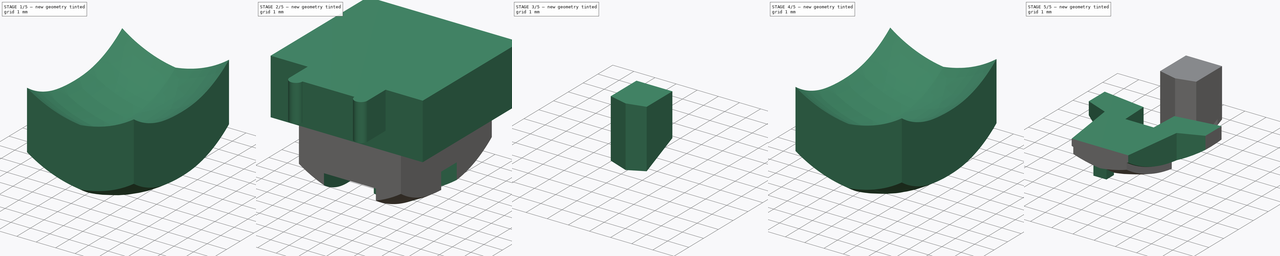
[diagram: build sequence overview — one tinted view per stage of 5, left to right]
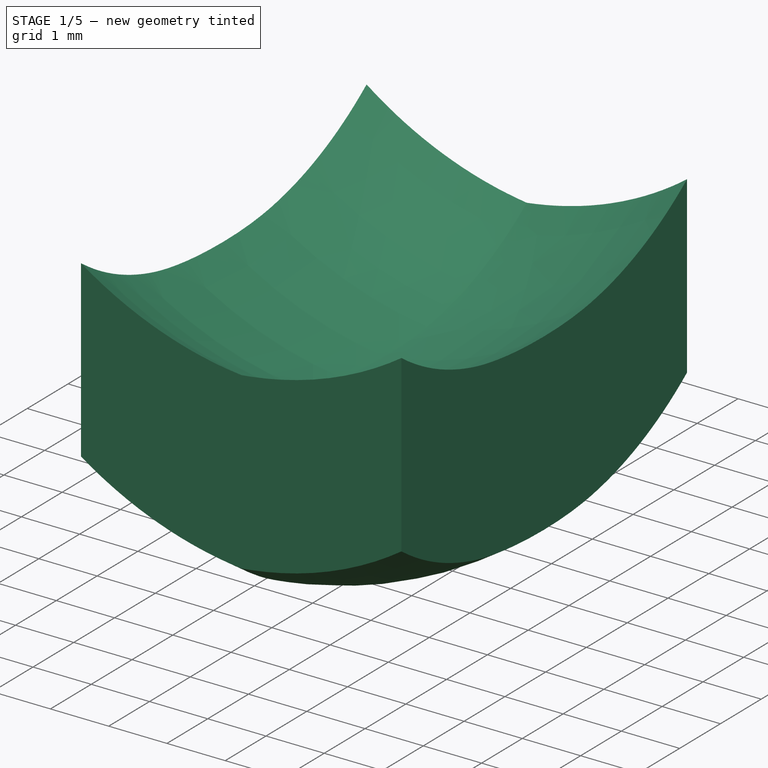
[diagram: stage 1 of 5 — iso view after this stage's code; geometry added in this stage tinted green]
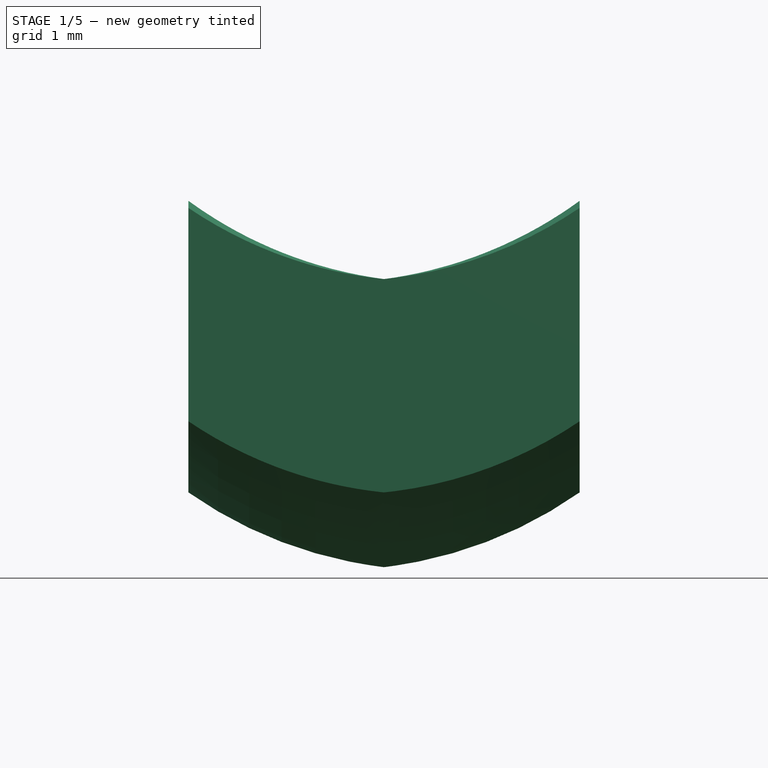
[diagram: stage 1 of 5 — front view after this stage's code; geometry added in this stage tinted green]
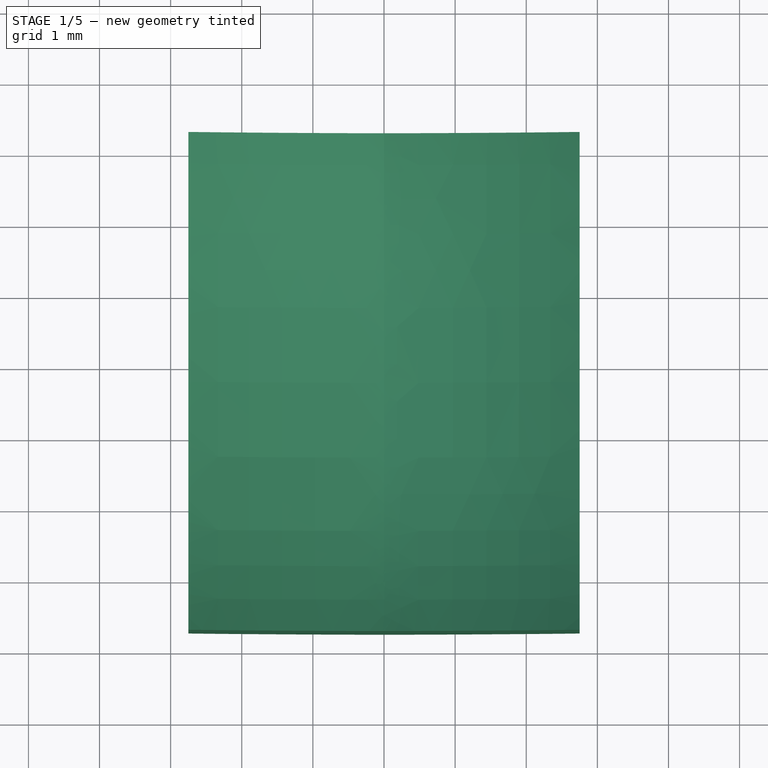
[diagram: stage 1 of 5 — top view after this stage's code; geometry added in this stage tinted green]
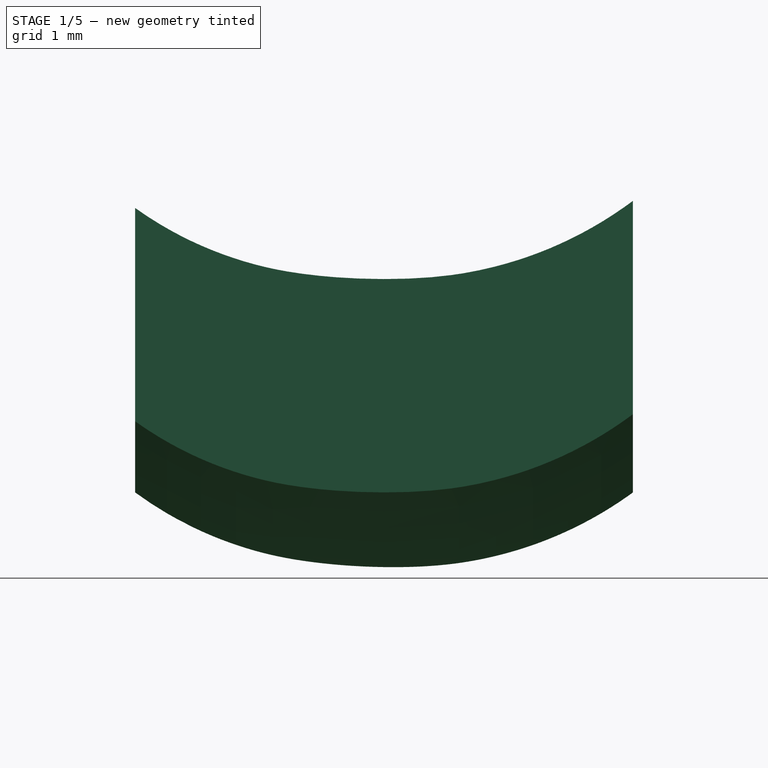
[diagram: stage 1 of 5 — right view after this stage's code; geometry added in this stage tinted green]
FCSTD DOCUMENT  (FreeCAD 1.0R39109 (Git))
Label: Head
License: All rights reserved
LicenseURL: https://en.wikipedia.org/wiki/All_rights_reserved
objects: Sketcher::SketchObject×25, PartDesign::Pocket×11, PartDesign::Pad×10, PartDesign::Body×8, PartDesign::FeatureBase×6, Part::FeaturePython×5, PartDesign::SubShapeBinder×2, Part::MultiFuse×2, Part::Extrusion×1, PartDesign::Boolean×1
note: 145 computed .brp shape members not serialized (recipe doc carries the construction recipe); baked Part::Feature solids carry a one-line shape summary decoded from their .brp

FEATURE [PartDesign::SubShapeBinder] Binder003
  BindCopyOnChange = 0
  BindMode = 2
  ClaimChildren = false
  Fuse = false
  MakeFace = true
  OffsetFill = false
  OffsetIntersection = false
  OffsetJoinType = 0
  OffsetOpenResult = false
  PartialLoad = false
  Refine = true
  Relative = true
  _Version = 2
FEATURE [Sketcher::SketchObject] Sketch110
  ArcFitTolerance = 1e-06
  AttachmentOffset = pos=(0,0,-1) rot=(0,0,1;0rad)
  AttachmentSupport = -> [XY_Plane010]
  ExternalGeometry = -> [Binder003]
  FullyConstrained = true
  MakeInternals = false
  MapMode = 5
  Placement = pos=(0,0,-1) rot=(0,0,1;0rad)
  sketch-geometry (6):
    g0: LineSegment StartX=8.9 StartY=7 StartZ=0 EndX=8.9 EndY=5.6 EndZ=0
    g1: ArcOfCircle CenterX=9.25 CenterY=5.6 CenterZ=0 NormalX=0 NormalY=0 NormalZ=1 AngleXU=0 Radius=0.35 StartAngle=3.14159 EndAngle=6.28319
    g2: LineSegment StartX=9.6 StartY=5.6 StartZ=0 EndX=12.4 EndY=5.6 EndZ=0
    g3: ArcOfCircle CenterX=12.75 CenterY=5.6 CenterZ=0 NormalX=0 NormalY=0 NormalZ=1 AngleXU=0 Radius=0.35 StartAngle=3.14159 EndAngle=6.28319
    g4: LineSegment StartX=13.1 StartY=5.6 StartZ=0 EndX=13.1 EndY=7 EndZ=0
    g5: LineSegment StartX=13.1 StartY=7 StartZ=0 EndX=8.9 EndY=7 EndZ=0
  constraints (18):
    c: Vertical(g0)
    c: Coincident(g1,g0)
    c: Horizontal(g2)
    c: PointOnObject(g3,g-3)
    c: Coincident(g4,g3)
    c: Coincident(g4,g-3)
    c: Coincident(g5,g4)
    c: Diameter(g1) = 0.7
    c: Diameter(g3) = 0.7
    c: DistanceY(g0,g0) = 1.4
    c: DistanceY(g4,g4) = 1.4
    c: Coincident(g2,g1)
    c: Coincident(g2,g3)
    c: DistanceY(g1,g1) = 0
    c: DistanceY(g3,g3) = 0
    c: DistanceY(g3,g3) = 0
    c: Coincident(g0,g5)
    c: Coincident(g0,g-4)
FEATURE [PartDesign::Pad] Pad096
  Direction = (0,0,1)
  Length = 2
  Length2 = 10
  Profile = -> Sketch110
  ReferenceAxis = -> Sketch110 [N_Axis]
  Refine = true
  Reversed = true
  Suppressed = false
  Type = 0
FEATURE [Sketcher::SketchObject] Sketch111
  ArcFitTolerance = 1e-06
  AttachmentSupport = -> [Pad096]
  ExternalGeometry = -> [Pad096]
  FullyConstrained = true
  MakeInternals = false
  MapMode = 5
  Placement = pos=(0,0,-3) rot=(1,0,0;3.14159rad)
  sketch-geometry (6):
    g0: LineSegment StartX=13.1 StartY=-7 StartZ=0 EndX=15.1 EndY=-7 EndZ=0
    g1: LineSegment StartX=8.9 StartY=-7 StartZ=0 EndX=6.9 EndY=-7 EndZ=0
    g2: LineSegment StartX=6.9 StartY=-7 StartZ=0 EndX=6.9 EndY=-14.5 EndZ=0
    g3: LineSegment StartX=6.9 StartY=-14.5 StartZ=0 EndX=15.1 EndY=-14.5 EndZ=0
    g4: LineSegment StartX=15.1 StartY=-14.5 StartZ=0 EndX=15.1 EndY=-7 EndZ=0
    g5: LineSegment StartX=13.1 StartY=-7 StartZ=0 EndX=8.9 EndY=-7 EndZ=0
  constraints (17):
    c: DistanceX(g-3,g-3) = 4.2
    c: Coincident(g0,g-3)
    c: Horizontal(g0)
    c: Coincident(g1,g-3)
    c: Horizontal(g1)
    c: Coincident(g2,g1)
    c: Vertical(g2)
    c: Coincident(g3,g2)
    c: Horizontal(g3)
    c: Coincident(g4,g3)
    c: Coincident(g4,g0)
    c: Vertical(g4)
    c: DistanceX(g0,g0) = 2
    c: DistanceX(g1,g1) = 2
    c: DistanceY(g4,g4) = 7.5
    c: Coincident(g5,g0)
    c: Coincident(g5,g1)
FEATURE [PartDesign::Pad] Pad097
  BaseFeature = -> Pad096
  Direction = (0,0,-1)
  Length = 2
  Length2 = 10
  Profile = -> Sketch111
  ReferenceAxis = -> Sketch111 [N_Axis]
  Refine = true
  Reversed = true
  Suppressed = false
  Type = 0
FEATURE [Sketcher::SketchObject] Sketch112
  ArcFitTolerance = 1e-06
  AttachmentSupport = -> [Pad097]
  ExternalGeometry = -> [Pad097]
  FullyConstrained = true
  MakeInternals = false
  MapMode = 5
  Placement = pos=(0,0,-3) rot=(1,0,0;3.14159rad)
  sketch-geometry (4):
    g0: LineSegment StartX=6.9 StartY=-7 StartZ=0 EndX=6.9 EndY=-14.5 EndZ=0
    g1: LineSegment StartX=6.9 StartY=-14.5 StartZ=0 EndX=15.1 EndY=-14.5 EndZ=0
    g2: LineSegment StartX=15.1 StartY=-14.5 StartZ=0 EndX=15.1 EndY=-7 EndZ=0
    g3: LineSegment StartX=15.1 StartY=-7 StartZ=0 EndX=6.9 EndY=-7 EndZ=0
  constraints (10):
    c: Coincident(g0,g1)
    c: Coincident(g1,g2)
    c: Coincident(g2,g3)
    c: Coincident(g3,g0)
    c: Vertical(g0)
    c: Vertical(g2)
    c: Horizontal(g1)
    c: Horizontal(g3)
    c: Coincident(g0,g-4)
    c: Coincident(g1,g-3)
FEATURE [PartDesign::Pad] Pad098
  BaseFeature = -> Pad097
  Direction = (0,0,-1)
  Length = 1
  Length2 = 10
  Profile = -> Sketch112
  ReferenceAxis = -> Sketch112 [N_Axis]
  Refine = true
  Suppressed = false
  Type = 0
FEATURE [Sketcher::SketchObject] Sketch
  ArcFitTolerance = 1e-06
  AttachmentSupport = -> [Pad098]
  ExternalGeometry = -> [Pad098]
  FullyConstrained = true
  MakeInternals = false
  MapMode = 5
  Placement = pos=(0,0,-4) rot=(1,0,0;3.14159rad)
  sketch-geometry (4):
    g0: LineSegment StartX=13.75 StartY=-14.25 StartZ=0 EndX=13.75 EndY=-7.25 EndZ=0
    g1: LineSegment StartX=13.75 StartY=-7.25 StartZ=0 EndX=8.25 EndY=-7.25 EndZ=0
    g2: LineSegment StartX=8.25 StartY=-7.25 StartZ=0 EndX=8.25 EndY=-14.25 EndZ=0
    g3: LineSegment StartX=8.25 StartY=-14.25 StartZ=0 EndX=13.75 EndY=-14.25 EndZ=0
  constraints (14):
    c: Coincident(g0,g1)
    c: Coincident(g1,g2)
    c: Coincident(g2,g3)
    c: Coincident(g3,g0)
    c: Vertical(g0)
    c: Vertical(g2)
    c: Horizontal(g1)
    c: Horizontal(g3)
    c: DistanceX(g3,g3) = 5.5
    c: DistanceX(g-3,g-3) = 8.2
    c: DistanceX(g0,g-3) = 1.35
    c: DistanceY(g-4,g-4) = 7.5
    c: DistanceY(g2,g2) = 7
    c: DistanceY(g-3,g0) = 0.25
FEATURE [PartDesign::Pad] Pad
  BaseFeature = -> Pad098
  Direction = (0,0,-1)
  Length = 0.1
  Length2 = 10
  Profile = -> Sketch
  ReferenceAxis = -> Sketch [N_Axis]
  Refine = true
  Suppressed = false
  Type = 0
FEATURE [Sketcher::SketchObject] Sketch113
  ArcFitTolerance = 1e-06
  AttachmentSupport = -> [Pad]
  ExternalGeometry = -> [Pad]
  FullyConstrained = true
  MakeInternals = false
  MapMode = 5
  Placement = pos=(13.75,0,0) rot=(0.57735,0.57735,0.57735;2.0944rad)
  sketch-geometry (7):
    g0: LineSegment [constr] StartX=14.25 StartY=-4.1 StartZ=0 EndX=14.25 EndY=-7 EndZ=0
    g1: LineSegment [constr] StartX=7.25 StartY=-4.1 StartZ=0 EndX=7.25 EndY=-7 EndZ=0
    g2: LineSegment [constr] StartX=7.25 StartY=-7 StartZ=0 EndX=14.25 EndY=-7 EndZ=0
    g3: ArcOfCircle CenterX=10.9586 CenterY=-1.4936 CenterZ=0 NormalX=0 NormalY=0 NormalZ=1 AngleXU=0 Radius=5.5 StartAngle=4.77377 EndAngle=5.35395
    g4: ArcOfCircle CenterX=10.75 CenterY=1.9 CenterZ=0 NormalX=0 NormalY=0 NormalZ=1 AngleXU=0 Radius=8.9 StartAngle=4.58317 EndAngle=4.77377
    g5: ArcOfCircle CenterX=10.2732 CenterY=-1.76915 CenterZ=0 NormalX=0 NormalY=0 NormalZ=1 AngleXU=0 Radius=5.2 StartAngle=4.09195 EndAngle=4.58317
    g6: LineSegment [constr] StartX=10.75 StartY=-7 StartZ=0 EndX=10.75 EndY=3 EndZ=0
  constraints (22):
    c: Coincident(g0,g-3)
    c: Vertical(g0)
    c: Coincident(g1,g-4)
    c: Vertical(g1)
    c: Coincident(g2,g1)
    c: Coincident(g2,g0)
    c: Horizontal(g2)
    c: DistanceY(g0,g0) = 2.9
    c: Tangent(g4,g3) = -1.5708
    c: Tangent(g5,g4) = -1.5708
    c: PointOnObject(g5,g1)
    c: PointOnObject(g3,g0)
    c: Symmetric(g2,g2,g6)
    c: Vertical(g6)
    c: PointOnObject(g4,g6)
    c: PointOnObject(g6,g4)
    c: DistanceY(g3,g-3) = 1.9
    c: Distance(g5,g-4) = 2
    c: Radius(g4) = 8.9
    c: DistanceY(g6,g6) = 10
    c: Radius(g3) = 5.5
    c: Radius(g5) = 5.2
FEATURE [Sketcher::SketchObject] Sketch114
  ArcFitTolerance = 1e-06
  AttachmentSupport = -> [Pad]
  ExternalGeometry = -> [Sketch113]
  FullyConstrained = true
  MakeInternals = false
  MapMode = 5
  Placement = pos=(8.25,0,0) rot=(0.57735,-0.57735,-0.57735;2.0944rad)
  sketch-geometry (3):
    g0: ArcOfCircle CenterX=-10.9586 CenterY=-1.4936 CenterZ=0 NormalX=0 NormalY=0 NormalZ=1 AngleXU=0 Radius=5.5 StartAngle=4.07083 EndAngle=4.65101
    g1: ArcOfCircle CenterX=-10.75 CenterY=1.9 CenterZ=0 NormalX=0 NormalY=0 NormalZ=1 AngleXU=0 Radius=8.9 StartAngle=4.65101 EndAngle=4.8416
    g2: ArcOfCircle CenterX=-10.2732 CenterY=-1.76915 CenterZ=0 NormalX=0 NormalY=0 NormalZ=1 AngleXU=0 Radius=5.2 StartAngle=4.8416 EndAngle=5.33283
  constraints (6):
    c: Tangent(g0,g-5) = -1.5708
    c: Coincident(g0,g-5)
    c: Coincident(g1,g0)
    c: Tangent(g1,g-4) = -1.5708
    c: Coincident(g2,g1)
    c: Tangent(g2,g-3) = -1.5708
FEATURE [Sketcher::SketchObject] Sketch115
  ArcFitTolerance = 1e-06
  AttachmentSupport = -> [Pad]
  ExternalGeometry = -> [Pad,Sketch113,Sketch114]
  FullyConstrained = true
  MakeInternals = false
  MapMode = 5
  Placement = pos=(0,7.25,0) rot=(1,0,0;1.5708rad)
  sketch-geometry (4):
    g0: LineSegment [constr] StartX=11 StartY=-4.1 StartZ=0 EndX=11 EndY=-7 EndZ=0
    g1: LineSegment [constr] StartX=8.25 StartY=-7 StartZ=0 EndX=13.75 EndY=-7 EndZ=0
    g2: ArcOfCircle CenterX=11.6136 CenterY=-1.03145 CenterZ=0 NormalX=0 NormalY=0 NormalZ=1 AngleXU=0 Radius=6 StartAngle=4.11729 EndAngle=4.60995
    g3: ArcOfCircle CenterX=10.3864 CenterY=-1.03145 CenterZ=0 NormalX=0 NormalY=0 NormalZ=1 AngleXU=0 Radius=6 StartAngle=4.81483 EndAngle=5.30749
  constraints (12):
    c: DistanceX(g-3,g-3) = 5.5
    c: Symmetric(g-3,g-3,g0)
    c: Vertical(g0)
    c: Coincident(g1,g-7)
    c: Coincident(g1,g-6)
    c: PointOnObject(g0,g1)
    c: Coincident(g2,g0)
    c: Coincident(g2,g-11)
    c: Coincident(g3,g0)
    c: Coincident(g3,g-10)
    c: Radius(g2) = 6
    c: Radius(g3) = 6
FEATURE [Sketcher::SketchObject] Sketch116
  ArcFitTolerance = 1e-06
  AttachmentSupport = -> [Pad]
  FullyConstrained = true
  MakeInternals = false
  MapMode = 5
  Placement = pos=(0,14.25,0) rot=(0,0.707107,0.707107;3.14159rad)
  sketch-geometry (2):
    g0: ArcOfCircle CenterX=-11.7844 CenterY=-1.05149 CenterZ=0 NormalX=0 NormalY=0 NormalZ=1 AngleXU=0 Radius=6 StartAngle=4.8435 EndAngle=5.34229
    g1: ArcOfCircle CenterX=-10.2156 CenterY=-1.05149 CenterZ=0 NormalX=0 NormalY=0 NormalZ=1 AngleXU=0 Radius=6 StartAngle=4.08249 EndAngle=4.58128
  constraints (4):
    c: Tangent(g0,g-3) = -1.5708
    c: Coincident(g0,g-4)
    c: Coincident(g1,g0)
    c: Tangent(g1,g-4) = -1.5708
FEATURE [PartDesign::Body] Body009  label="Main_head"
  AllowCompound = false
  Group = -> [Binder003,Sketch110,Pad096,Sketch111,Pad097,Sketch112,Pad098,Sketch,Pad,Sketch113,Sketch114,Sketch115,Sketch116]
  Origin = -> Origin010
  Tip = -> Pad
FEATURE [Part::FeaturePython] JoinCurve  # WARN: FeaturePython — macro-defined, semantics opaque (R4)
  Active = false
  ApproxTolerance = 0.001
  Continuity = 5
  CornerBreak = false
  DegreeMax = 5
  DegreeMin = 3
  Edges = -> [Sketch113]
  ForceClosed = false
  ForceContact = true
  OffsetParameter = 0
  Parametrization = 0
  Rational = true
  Reverse = false
  Samples = 100
  StartOffset = 0
  Tolerance = 0.01
FEATURE [Part::FeaturePython] JoinCurve001  # WARN: FeaturePython — macro-defined, semantics opaque (R4)
  Active = false
  ApproxTolerance = 0.001
  Continuity = 5
  CornerBreak = false
  DegreeMax = 5
  DegreeMin = 3
  Edges = -> [Sketch114]
  ForceClosed = false
  ForceContact = true
  OffsetParameter = 0
  Parametrization = 0
  Rational = true
  Reverse = false
  Samples = 100
  StartOffset = 0
  Tolerance = 0.01
FEATURE [Part::FeaturePython] JoinCurve002  # WARN: FeaturePython — macro-defined, semantics opaque (R4)
  Active = false
  ApproxTolerance = 0.001
  Continuity = 5
  CornerBreak = false
  DegreeMax = 5
  DegreeMin = 3
  Edges = -> [Sketch115]
  ForceClosed = false
  ForceContact = true
  OffsetParameter = 0
  Parametrization = 0
  Rational = true
  Reverse = false
  Samples = 100
  StartOffset = 0
  Tolerance = 0.01
FEATURE [Part::FeaturePython] JoinCurve003  # WARN: FeaturePython — macro-defined, semantics opaque (R4)
  Active = false
  ApproxTolerance = 0.001
  Continuity = 5
  CornerBreak = false
  DegreeMax = 5
  DegreeMin = 3
  Edges = -> [Sketch116]
  ForceClosed = false
  ForceContact = true
  OffsetParameter = 0
  Parametrization = 0
  Rational = true
  Reverse = false
  Samples = 100
  StartOffset = 0
  Tolerance = 0.01
FEATURE [Part::FeaturePython] Gordon  # WARN: FeaturePython — macro-defined, semantics opaque (R4)
  FlipNormal = false
  MaxCtrlPts = 80
  Output = 0
  SamplesU = 16
  SamplesV = 16
  Sources = -> [JoinCurve,JoinCurve001,JoinCurve002,JoinCurve003]
  Tol2D = 1e-05
  Tol3D = 0.01
FEATURE [Part::Extrusion] Extrude
  Base = -> Gordon
  Dir = (0,0,1)
  DirMode = 0
  FaceMakerClass = Part::FaceMakerBullseye
  FaceMakerMode = 3
  LengthFwd = 3
  LengthRev = 0
  Solid = false
  Symmetric = false
FEATURE [PartDesign::Body] Body
  AllowCompound = false
  BaseFeature = -> Extrude
  Group = -> [BaseFeature,Boolean,Sketch117,Pocket,Sketch118,Pocket001]
  Origin = -> Origin
  Tip = -> Pocket001
FEATURE [PartDesign::FeatureBase] BaseFeature001
  BaseFeature = -> Extrude
  Suppressed = false
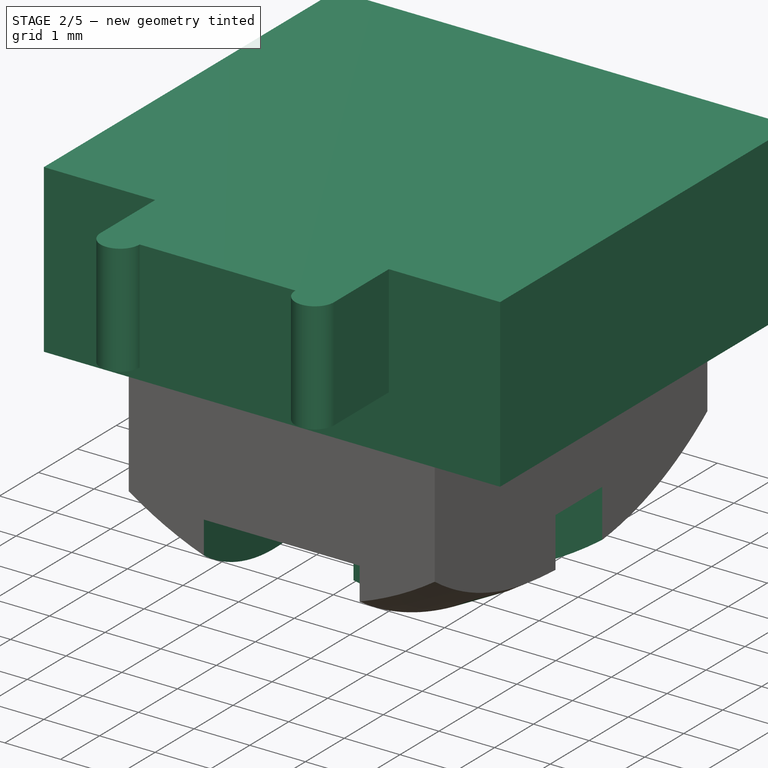
[diagram: stage 2 of 5 — iso view after this stage's code; geometry added in this stage tinted green]
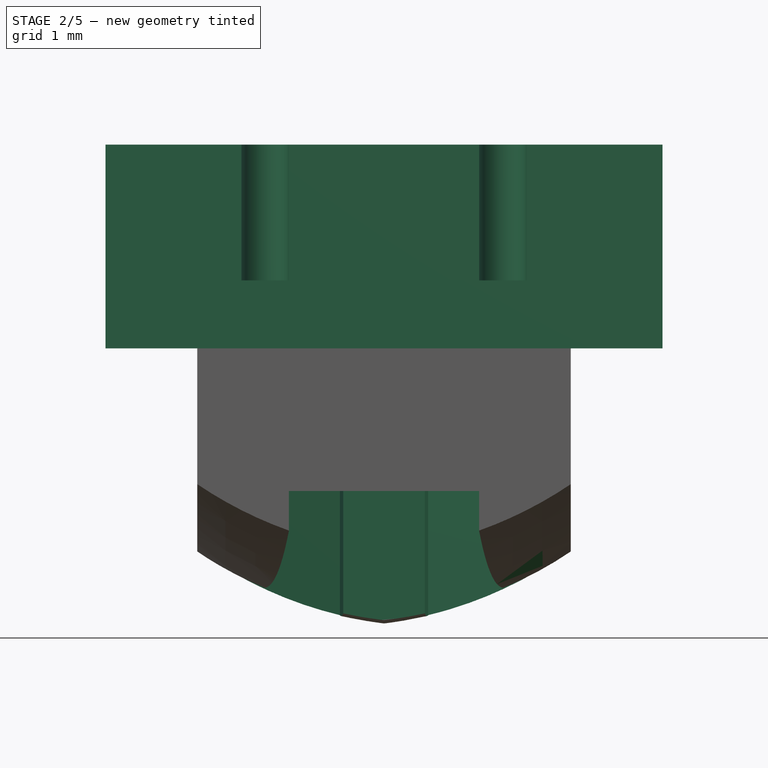
[diagram: stage 2 of 5 — front view after this stage's code; geometry added in this stage tinted green]
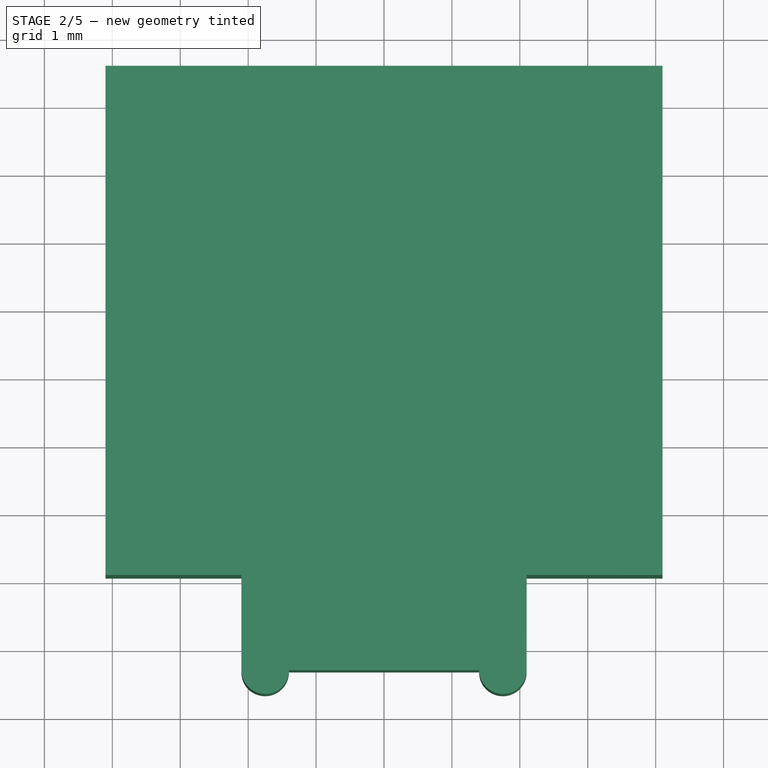
[diagram: stage 2 of 5 — top view after this stage's code; geometry added in this stage tinted green]
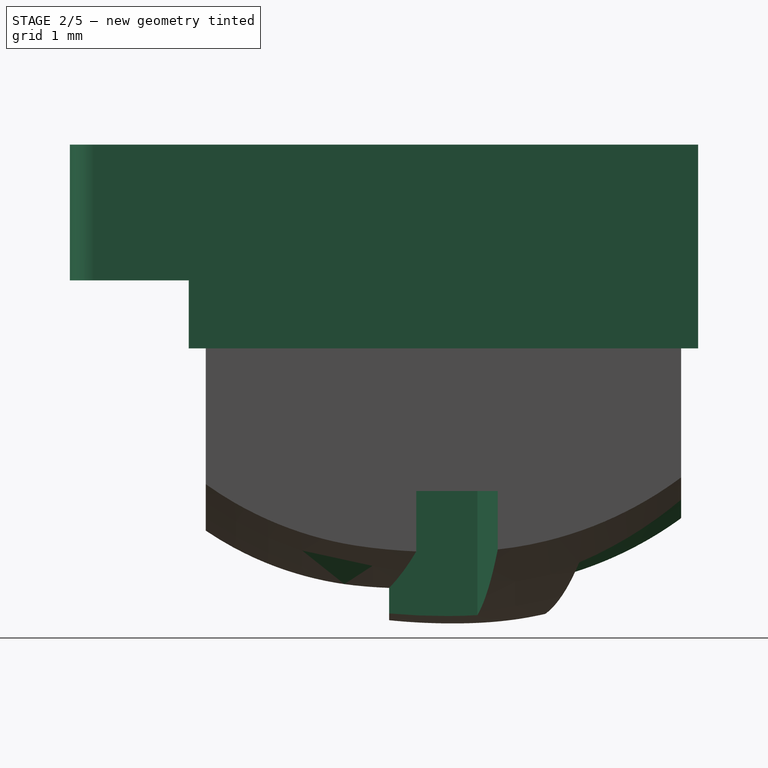
[diagram: stage 2 of 5 — right view after this stage's code; geometry added in this stage tinted green]
FEATURE [PartDesign::FeatureBase] BaseFeature
  BaseFeature = -> Extrude
  Suppressed = false
FEATURE [PartDesign::Boolean] Boolean
  BaseFeature = -> BaseFeature
  Group = -> [Body009]
  Refine = true
  Suppressed = false
  Type = 0
  UsePlacement = true
FEATURE [Sketcher::SketchObject] Sketch117
  ArcFitTolerance = 1e-06
  AttachmentOffset = pos=(0,0,4.1) rot=(0,0,1;0rad)
  AttachmentSupport = -> [Boolean]
  ExternalGeometry = -> [Boolean]
  FullyConstrained = true
  MakeInternals = false
  MapMode = 5
  Placement = pos=(0,0,-8.1) rot=(1,0,0;3.14159rad)
  sketch-geometry (14):
    g0: LineSegment StartX=12.4 StartY=-7.25 StartZ=0 EndX=12.75 EndY=-9.95 EndZ=0
    g1: LineSegment StartX=12.75 StartY=-9.95 StartZ=0 EndX=13.75 EndY=-10.35 EndZ=0
    g2: LineSegment StartX=13.75 StartY=-10.35 StartZ=0 EndX=13.75 EndY=-11.55 EndZ=0
    g3: LineSegment StartX=13.75 StartY=-11.55 StartZ=0 EndX=11.65 EndY=-11.25 EndZ=0
    g4: LineSegment StartX=11.65 StartY=-11.25 StartZ=0 EndX=11.6 EndY=-9.95 EndZ=0
    g5: LineSegment StartX=11.6 StartY=-9.95 StartZ=0 EndX=10.4 EndY=-9.95 EndZ=0
    g6: LineSegment StartX=10.4 StartY=-9.95 StartZ=0 EndX=10.35 EndY=-11.25 EndZ=0
    g7: LineSegment StartX=10.35 StartY=-11.25 StartZ=0 EndX=8.25 EndY=-11.55 EndZ=0
    g8: LineSegment StartX=8.25 StartY=-11.55 StartZ=0 EndX=8.25 EndY=-10.35 EndZ=0
    g9: LineSegment StartX=8.25 StartY=-10.35 StartZ=0 EndX=9.25 EndY=-9.95 EndZ=0
    g10: LineSegment StartX=9.25 StartY=-9.95 StartZ=0 EndX=9.6 EndY=-7.25 EndZ=0
    g11: LineSegment StartX=9.6 StartY=-7.25 StartZ=0 EndX=12.4 EndY=-7.25 EndZ=0
    g12: LineSegment [constr] StartX=11 StartY=-7.25 StartZ=0 EndX=11 EndY=-14.25 EndZ=0
    g13: LineSegment [constr] StartX=11.6 StartY=-9.95 StartZ=0 EndX=12.75 EndY=-9.95 EndZ=0
  constraints (36):
    c: PointOnObject(g0,g-3)
    c: Coincident(g1,g0)
    c: Coincident(g2,g1)
    c: Vertical(g2)
    c: Coincident(g3,g2)
    c: Coincident(g4,g3)
    c: Coincident(g5,g4)
    c: Horizontal(g5)
    c: Coincident(g6,g5)
    c: Coincident(g7,g6)
    c: Coincident(g8,g7)
    c: Coincident(g9,g8)
    c: Coincident(g10,g9)
    c: PointOnObject(g10,g-3)
    c: Coincident(g11,g10)
    c: Coincident(g11,g0)
    c: PointOnObject(g7,g-5)
    c: PointOnObject(g2,g-4)
    c: DistanceX(g11,g11) = 2.8
    c: DistanceX(g9,g0) = 3.5
    c: Symmetric(g11,g11,g12)
    c: PointOnObject(g12,g-6)
    c: Symmetric(g3,g6,g12)
    c: Symmetric(g4,g5,g12)
    c: Symmetric(g0,g9,g12)
    c: Symmetric(g7,g2,g12)
    c: Symmetric(g8,g1,g12)
    c: DistanceX(g5,g5) = 1.2
    c: DistanceY(g2,g2) = 1.2
    c: DistanceY(g9,g10) = 2.7
    c: DistanceY(g8,g-5) = 3.1
    c: DistanceX(g6,g3) = 1.3
    c: Coincident(g13,g4)
    c: Coincident(g13,g0)
    c: Horizontal(g13)
    c: DistanceY(g3,g4) = 1.3
FEATURE [PartDesign::Pocket] Pocket
  BaseFeature = -> Boolean
  Direction = (0,0,1)
  Length = 2
  Length2 = 5
  Profile = -> Sketch117
  ReferenceAxis = -> Sketch117 [N_Axis]
  Refine = true
  Suppressed = false
  Type = 0
FEATURE [Sketcher::SketchObject] Sketch118
  ArcFitTolerance = 1e-06
  AttachmentOffset = pos=(0,0,4.1) rot=(0,0,1;0rad)
  AttachmentSupport = -> [Pocket]
  ExternalGeometry = -> [Pocket]
  FullyConstrained = true
  MakeInternals = false
  MapMode = 5
  Placement = pos=(0,0,-8.1) rot=(1,0,0;3.14159rad)
  sketch-geometry (6):
    g0: LineSegment StartX=13.25 StartY=-14.25 StartZ=0 EndX=8.75 EndY=-14.25 EndZ=0
    g1: LineSegment StartX=8.75 StartY=-14.25 StartZ=0 EndX=9 EndY=-12.75 EndZ=0
    g2: LineSegment StartX=13.25 StartY=-14.25 StartZ=0 EndX=13 EndY=-12.75 EndZ=0
    g3: LineSegment StartX=13 StartY=-12.75 StartZ=0 EndX=11 EndY=-12.25 EndZ=0
    g4: LineSegment StartX=9 StartY=-12.75 StartZ=0 EndX=11 EndY=-12.25 EndZ=0
    g5: LineSegment [constr] StartX=11 StartY=-14.25 StartZ=0 EndX=11 EndY=-7.25 EndZ=0
  constraints (18):
    c: DistanceX(g-5,g-4) = 5.5
    c: PointOnObject(g0,g-3)
    c: PointOnObject(g0,g-3)
    c: Coincident(g1,g0)
    c: Coincident(g2,g0)
    c: Coincident(g3,g2)
    c: Coincident(g4,g1)
    c: Coincident(g4,g3)
    c: Vertical(g5)
    c: PointOnObject(g5,g-6)
    c: PointOnObject(g3,g5)
    c: Symmetric(g-4,g-5,g5)
    c: Symmetric(g2,g1,g5)
    c: DistanceX(g5,g0) = 2.25
    c: DistanceX(g0,g5) = 2.25
    c: DistanceY(g5,g3) = 2
    c: DistanceX(g3,g2) = 2
    c: DistanceY(g0,g2) = 1.5
FEATURE [PartDesign::Pocket] Pocket001
  BaseFeature = -> Pocket
  Direction = (0,0,1)
  Length = 3
  Length2 = 5
  Profile = -> Sketch118
  ReferenceAxis = -> Sketch118 [N_Axis]
  Refine = true
  Suppressed = false
  Type = 0
FEATURE [Sketcher::SketchObject] Sketch119
  ArcFitTolerance = 1e-06
  AttachmentOffset = pos=(0,0,-8.1) rot=(0,0,1;0rad)
  AttachmentSupport = -> [XY_Plane011]
  FullyConstrained = false
  MakeInternals = false
  MapMode = 5
  Placement = pos=(0,0,-8.1) rot=(0,0,1;0rad)
  sketch-geometry (4):
    g0: LineSegment StartX=5.69744 StartY=12.0338 StartZ=0 EndX=16.6182 EndY=12.0338 EndZ=0
    g1: LineSegment StartX=16.6182 StartY=12.0338 StartZ=0 EndX=16.6182 EndY=6.4547 EndZ=0
    g2: LineSegment StartX=16.6182 StartY=6.4547 StartZ=0 EndX=5.69744 EndY=6.4547 EndZ=0
    g3: LineSegment StartX=5.69744 StartY=6.4547 StartZ=0 EndX=5.69744 EndY=12.0338 EndZ=0
  constraints (8):
    c: Coincident(g0,g1)
    c: Coincident(g1,g2)
    c: Coincident(g2,g3)
    c: Coincident(g3,g0)
    c: Horizontal(g0)
    c: Horizontal(g2)
    c: Vertical(g1)
    c: Vertical(g3)
FEATURE [PartDesign::Pocket] Pocket002
  BaseFeature = -> BaseFeature001
  Direction = (0,0,-1)
  Length = 5
  Length2 = 5
  Profile = -> Sketch119
  ReferenceAxis = -> Sketch119 [N_Axis]
  Refine = true
  Reversed = true
  Suppressed = false
  Type = 0
FEATURE [PartDesign::Body] Body010
  AllowCompound = false
  BaseFeature = -> Extrude
  Group = -> [BaseFeature001,Sketch119,Pocket002]
  Origin = -> Origin011
  Placement = pos=(0,0,0.5) rot=(0,0,1;0rad)
  Tip = -> Pocket002
FEATURE [Part::MultiFuse] Fusion
  Shapes = -> [Body,Body010]
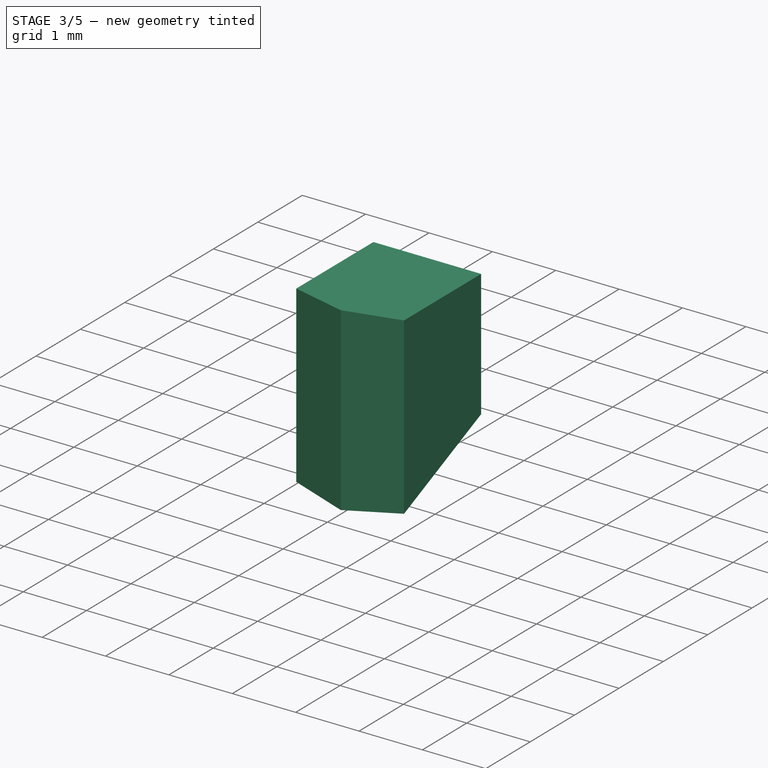
[diagram: stage 3 of 5 — iso view after this stage's code; geometry added in this stage tinted green]
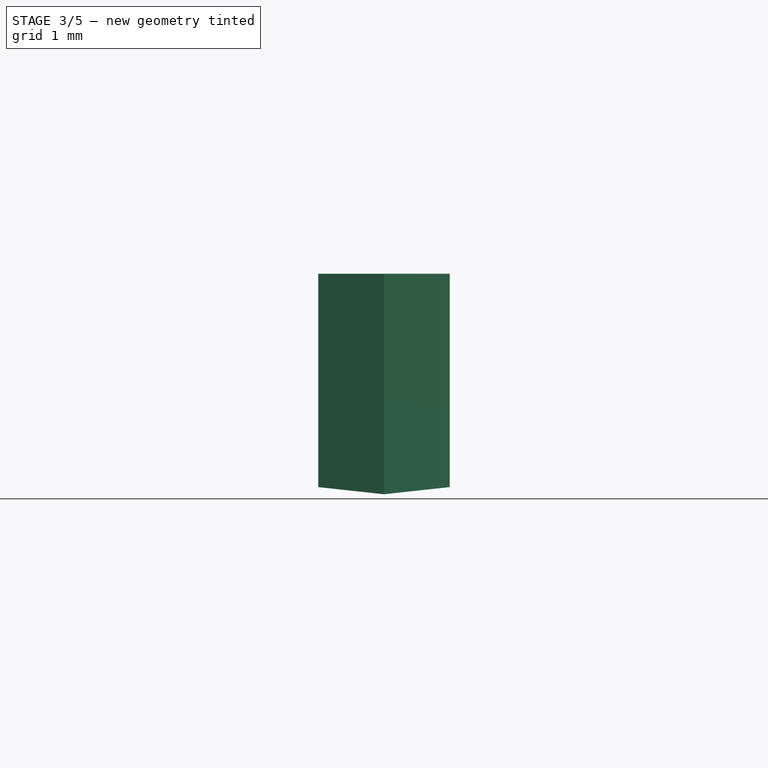
[diagram: stage 3 of 5 — front view after this stage's code; geometry added in this stage tinted green]
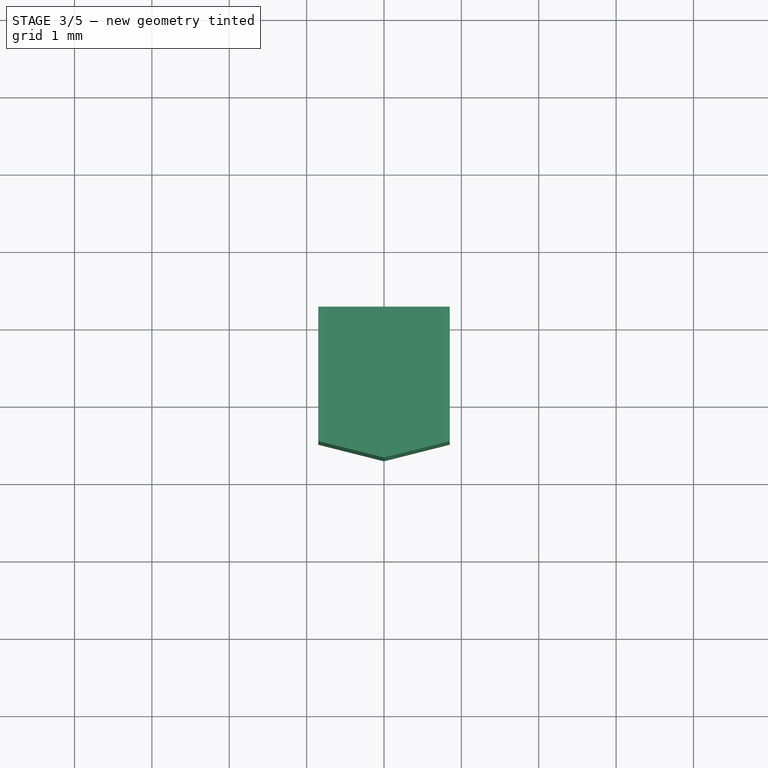
[diagram: stage 3 of 5 — top view after this stage's code; geometry added in this stage tinted green]
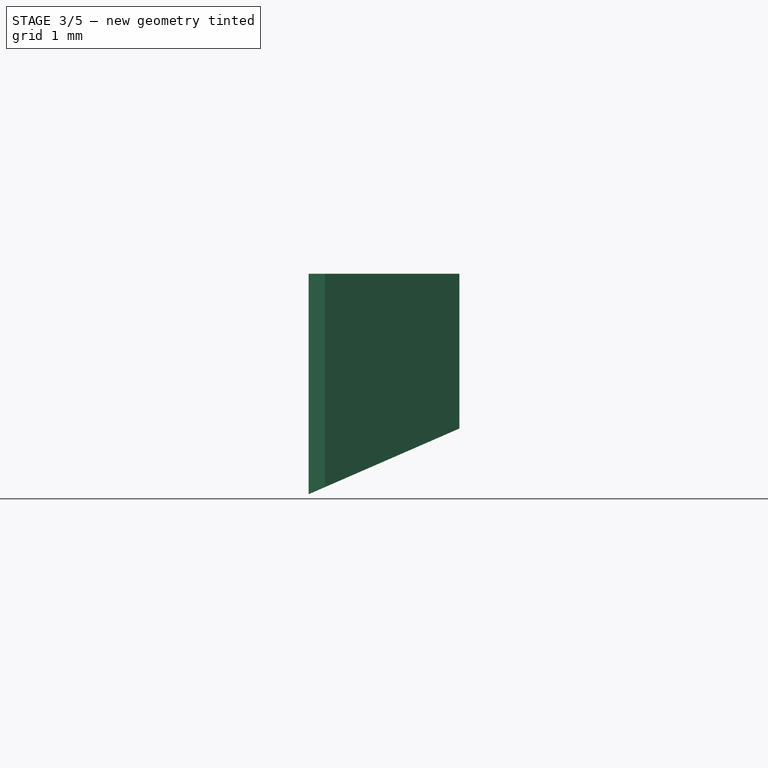
[diagram: stage 3 of 5 — right view after this stage's code; geometry added in this stage tinted green]
FEATURE [PartDesign::Body] Body013
  AllowCompound = false
  BaseFeature = -> Extrude
  Group = -> [BaseFeature004,Sketch126,Pocket006,Sketch127,Pocket007]
  Origin = -> Origin014
  Tip = -> Pocket007
FEATURE [PartDesign::FeatureBase] BaseFeature002
  BaseFeature = -> Fusion
  Suppressed = false
FEATURE [Sketcher::SketchObject] Sketch120
  ArcFitTolerance = 1e-06
  AttachmentOffset = pos=(0,0,4.1) rot=(0,0,1;0rad)
  AttachmentSupport = -> [BaseFeature002]
  ExternalGeometry = -> [BaseFeature002]
  FullyConstrained = true
  MakeInternals = false
  MapMode = 5
  Placement = pos=(0,0,-8.1) rot=(1,0,0;3.14159rad)
  sketch-geometry (8):
    g0: LineSegment [constr] StartX=11 StartY=-12.25 StartZ=0 EndX=9 EndY=-12.75 EndZ=0
    g1: LineSegment [constr] StartX=11 StartY=-12.25 StartZ=0 EndX=13 EndY=-12.75 EndZ=0
    g2: LineSegment StartX=11 StartY=-12.25 StartZ=0 EndX=10.1 EndY=-12.475 EndZ=0
    g3: LineSegment StartX=11 StartY=-12.25 StartZ=0 EndX=11.9 EndY=-12.475 EndZ=0
    g4: LineSegment StartX=10.1 StartY=-12.475 StartZ=0 EndX=10.1 EndY=-14.25 EndZ=0
    g5: LineSegment StartX=11.9 StartY=-12.475 StartZ=0 EndX=11.9 EndY=-14.25 EndZ=0
    g6: LineSegment [constr] StartX=8.75 StartY=-14.25 StartZ=0 EndX=13.25 EndY=-14.25 EndZ=0
    g7: LineSegment StartX=10.1 StartY=-14.25 StartZ=0 EndX=11.9 EndY=-14.25 EndZ=0
  constraints (20):
    c: Coincident(g0,g-4)
    c: Coincident(g0,g-5)
    c: Coincident(g1,g0)
    c: Coincident(g1,g-3)
    c: Coincident(g2,g0)
    c: PointOnObject(g2,g0)
    c: Coincident(g3,g0)
    c: PointOnObject(g3,g1)
    c: Coincident(g4,g2)
    c: Vertical(g4)
    c: Coincident(g5,g3)
    c: Coincident(g6,g-6)
    c: Coincident(g6,g-7)
    c: DistanceX(g2,g0) = 0.9
    c: DistanceX(g0,g3) = 0.9
    c: Vertical(g5)
    c: Coincident(g7,g4)
    c: Coincident(g7,g5)
    c: PointOnObject(g5,g6)
    c: PointOnObject(g4,g6)
FEATURE [PartDesign::Pocket] Pocket003
  BaseFeature = -> BaseFeature002
  Direction = (0,0,1)
  Length = 3
  Length2 = 5
  Profile = -> Sketch120
  ReferenceAxis = -> Sketch120 [N_Axis]
  Refine = true
  Suppressed = false
  Type = 0
FEATURE [Sketcher::SketchObject] Sketch121
  ArcFitTolerance = 1e-06
  AttachmentSupport = -> [Pocket003]
  ExternalGeometry = -> [Pocket003]
  FullyConstrained = true
  MakeInternals = false
  MapMode = 5
  Placement = pos=(8.25,2.78e-14,0) rot=(0.57735,-0.57735,-0.57735;2.0944rad)
  sketch-geometry (5):
    g0: LineSegment StartX=-9.75 StartY=-4 StartZ=0 EndX=-10.425 EndY=-4.9 EndZ=0
    g1: LineSegment StartX=-9.75 StartY=-4 StartZ=0 EndX=-13.5 EndY=-4 EndZ=0
    g2: LineSegment StartX=-13.5 StartY=-4 StartZ=0 EndX=-12.825 EndY=-4.9 EndZ=0
    g3: ArcOfCircle CenterX=-11.625 CenterY=-4 CenterZ=0 NormalX=0 NormalY=0 NormalZ=1 AngleXU=0 Radius=1.5 StartAngle=3.78509 EndAngle=5.63968
    g4: LineSegment [constr] StartX=-10.425 StartY=-4.9 StartZ=0 EndX=-12.825 EndY=-4.9 EndZ=0
  constraints (13):
    c: PointOnObject(g0,g-3)
    c: Coincident(g1,g0)
    c: PointOnObject(g1,g-3)
    c: Coincident(g2,g1)
    c: Coincident(g4,g0)
    c: Coincident(g4,g2)
    c: Horizontal(g4)
    c: Tangent(g3,g0) = 1.5708
    c: Tangent(g3,g2) = -1.5708
    c: Radius(g3) = 1.5
    c: PointOnObject(g3,g1)
    c: DistanceX(g-3,g1) = 1
    c: DistanceY(g0,g0) = 0.9
FEATURE [PartDesign::Pad] Pad099
  BaseFeature = -> Pocket003
  Direction = (-1,-3.2e-15,-1e-16)
  Length = 0.5
  Length2 = 10
  Profile = -> Sketch121
  ReferenceAxis = -> Sketch121 [N_Axis]
  Refine = true
  Suppressed = false
  Type = 0
FEATURE [Sketcher::SketchObject] Sketch122
  ArcFitTolerance = 1e-06
  AttachmentSupport = -> [Pad099]
  ExternalGeometry = -> [Pad099]
  FullyConstrained = true
  MakeInternals = false
  MapMode = 5
  Placement = pos=(13.75,-5.096e-13,0) rot=(0.57735,0.57735,0.57735;2.0944rad)
  sketch-geometry (4):
    g0: LineSegment StartX=12.825 StartY=-4.9 StartZ=0 EndX=13.5 EndY=-4 EndZ=0
    g1: LineSegment StartX=13.5 StartY=-4 StartZ=0 EndX=9.75 EndY=-4 EndZ=0
    g2: LineSegment StartX=9.75 StartY=-4 StartZ=0 EndX=10.425 EndY=-4.9 EndZ=0
    g3: ArcOfCircle CenterX=11.625 CenterY=-4 CenterZ=0 NormalX=0 NormalY=0 NormalZ=1 AngleXU=0 Radius=1.5 StartAngle=3.78509 EndAngle=5.63968
  constraints (9):
    c: Coincident(g0,g-6)
    c: Coincident(g0,g-6)
    c: Coincident(g1,g0)
    c: Coincident(g1,g-3)
    c: Coincident(g2,g1)
    c: Coincident(g2,g-4)
    c: Coincident(g3,g0)
    c: Coincident(g3,g2)
    c: Tangent(g3,g-4)
FEATURE [PartDesign::Pad] Pad100
  BaseFeature = -> Pad099
  Direction = (1,-3.7e-14,-1e-16)
  Length = 0.5
  Length2 = 10
  Profile = -> Sketch122
  ReferenceAxis = -> Sketch122 [N_Axis]
  Refine = true
  Suppressed = false
  Type = 0
FEATURE [Sketcher::SketchObject] Sketch123
  ArcFitTolerance = 1e-06
  AttachmentSupport = -> [Pad100]
  ExternalGeometry = -> [Pad100]
  FullyConstrained = true
  MakeInternals = false
  MapMode = 5
  Placement = pos=(0,0,-4) rot=(1,0,0;3.14159rad)
  sketch-geometry (19):
    g0: LineSegment StartX=14.25 StartY=-10.425 StartZ=0 EndX=14.25 EndY=-9.1 EndZ=0
    g1: ArcOfCircle CenterX=14.35 CenterY=-7.85 CenterZ=0 NormalX=0 NormalY=0 NormalZ=1 AngleXU=0 Radius=0.6 StartAngle=0 EndAngle=3.14159
    g2: LineSegment [constr] StartX=13.75 StartY=-7.85 StartZ=0 EndX=14.35 EndY=-7.85 EndZ=0
    g3: LineSegment [constr] StartX=14.35 StartY=-7.85 StartZ=0 EndX=14.95 EndY=-7.85 EndZ=0
    g4: LineSegment [constr] StartX=13.75 StartY=-7.25 StartZ=0 EndX=14.35 EndY=-7.25 EndZ=0
    g5: ArcOfCircle CenterX=11.6109 CenterY=-6.80109 CenterZ=0 NormalX=0 NormalY=0 NormalZ=1 AngleXU=0 Radius=3.5 StartAngle=5.56658 EndAngle=5.97882
    g6: LineSegment StartX=14.25 StartY=-10.425 StartZ=0 EndX=13.75 EndY=-10.425 EndZ=0
    g7: LineSegment StartX=13.75 StartY=-7.85 StartZ=0 EndX=13.75 EndY=-10.425 EndZ=0
    g8: LineSegment StartX=8.25 StartY=-10.425 StartZ=0 EndX=8.25 EndY=-7.85 EndZ=0
    g9: ArcOfCircle CenterX=7.65 CenterY=-7.85 CenterZ=0 NormalX=0 NormalY=0 NormalZ=1 AngleXU=0 Radius=0.6 StartAngle=0 EndAngle=3.14159
    g10: LineSegment [constr] StartX=13.75 StartY=-7.85 StartZ=0 EndX=8.25 EndY=-7.85 EndZ=0
    g11: LineSegment [constr] StartX=13.75 StartY=-9.75 StartZ=0 EndX=8.25 EndY=-9.75 EndZ=0
    g12: LineSegment [constr] StartX=8.25 StartY=-7.25 StartZ=0 EndX=7.65 EndY=-7.25 EndZ=0
    g13: LineSegment [constr] StartX=7.65 StartY=-7.85 StartZ=0 EndX=8.25 EndY=-7.85 EndZ=0
    g14: LineSegment [constr] StartX=7.65 StartY=-7.85 StartZ=0 EndX=7.05 EndY=-7.85 EndZ=0
    g15: ArcOfCircle CenterX=10.3891 CenterY=-6.80109 CenterZ=0 NormalX=0 NormalY=0 NormalZ=1 AngleXU=0 Radius=3.5 StartAngle=3.44596 EndAngle=3.8582
    g16: LineSegment StartX=7.75 StartY=-10.425 StartZ=0 EndX=8.25 EndY=-10.425 EndZ=0
    g17: LineSegment StartX=7.75 StartY=-10.425 StartZ=0 EndX=7.75 EndY=-9.1 EndZ=0
    g18: LineSegment [constr] StartX=14.25 StartY=-9.1 StartZ=0 EndX=7.75 EndY=-9.1 EndZ=0
  constraints (50):
    c: Vertical(g0)
    c: Coincident(g2,g1)
    c: Coincident(g3,g1)
    c: Horizontal(g3)
    c: Radius(g1) = 0.6
    c: Tangent(g4,g1) = 1.5708
    c: Horizontal(g4)
    c: Coincident(g5,g1)
    c: Coincident(g5,g0)
    c: Coincident(g1,g3)
    c: Radius(g5) = 3.5
    c: DistanceY(g0,g1) = 1.25
    c: Coincident(g2,g1)
    c: Horizontal(g2)
    c: Coincident(g0,g-3)
    c: Coincident(g6,g0)
    c: Horizontal(g6)
    c: Coincident(g7,g1)
    c: Coincident(g7,g6)
    c: Vertical(g7)
    c: PointOnObject(g1,g-4)
    c: Coincident(g4,g-4)
    c: PointOnObject(g8,g-5)
    c: Coincident(g9,g8)
    c: Radius(g9) = 0.6
    c: Coincident(g10,g1)
    c: Coincident(g10,g8)
    c: Horizontal(g10)
    c: Coincident(g11,g-4)
    c: Coincident(g12,g-5)
    c: PointOnObject(g12,g9)
    c: Horizontal(g12)
    c: Coincident(g13,g9)
    c: Coincident(g13,g8)
    c: Horizontal(g13)
    c: Coincident(g14,g9)
    c: Coincident(g14,g9)
    c: Horizontal(g14)
    c: Coincident(g15,g9)
    c: Radius(g15) = 3.5
    c: Coincident(g8,g-7)
    c: Coincident(g16,g8)
    c: Coincident(g17,g16)
    c: Vertical(g17)
    c: Coincident(g16,g-7)
    c: Coincident(g11,g-6)
    c: Coincident(g15,g17)
    c: Coincident(g18,g0)
    c: Coincident(g18,g15)
    c: Horizontal(g18)
FEATURE [PartDesign::Pad] Pad101
  BaseFeature = -> Pad100
  Direction = (0,0,-1)
  Length = 0.5
  Length2 = 10
  Profile = -> Sketch123
  ReferenceAxis = -> Sketch123 [N_Axis]
  Refine = true
  Suppressed = false
  Type = 0
FEATURE [PartDesign::Body] Body014  label="Lower_Face"
  AllowCompound = false
  BaseFeature = -> Fusion001
  Group = -> [BaseFeature005,Sketch128,Pocket008,Sketch129,Pad102]
  Origin = -> Origin015
  Tip = -> Pad102
FEATURE [PartDesign::Body] Body011  label="Main_Head"
  AllowCompound = false
  BaseFeature = -> Fusion
  Group = -> [BaseFeature002,Sketch120,Pocket003,Sketch121,Pad099,Sketch122,Pad100,Sketch123,Pad101]
  Origin = -> Origin012
  Tip = -> Pad101
FEATURE [PartDesign::SubShapeBinder] Binder
  BindCopyOnChange = 0
  BindMode = 0
  ClaimChildren = false
  Context = -> Body015 [Binder.]
  Fuse = false
  MakeFace = true
  OffsetFill = false
  OffsetIntersection = false
  OffsetJoinType = 0
  OffsetOpenResult = false
  PartialLoad = false
  Refine = true
  Relative = true
  Support = -> [Body011[Pad101.Face43]]
  _Version = 2
FEATURE [Sketcher::SketchObject] Sketch130
  ArcFitTolerance = 1e-06
  AttachmentSupport = -> [Binder]
  ExternalGeometry = -> [Binder]
  FullyConstrained = true
  MakeInternals = false
  MapMode = 5
  Placement = pos=(0,0,-5.1) rot=(1,0,0;3.14159rad)
  sketch-geometry (6):
    g0: LineSegment StartX=11.85 StartY=-14.25 StartZ=0 EndX=10.15 EndY=-14.25 EndZ=0
    g1: LineSegment StartX=10.15 StartY=-14.25 StartZ=0 EndX=10.15 EndY=-12.5125 EndZ=0
    g2: LineSegment StartX=10.15 StartY=-12.5125 StartZ=0 EndX=11 EndY=-12.3 EndZ=0
    g3: LineSegment StartX=11 StartY=-12.3 StartZ=0 EndX=11.85 EndY=-12.5125 EndZ=0
    g4: LineSegment StartX=11.85 StartY=-12.5125 StartZ=0 EndX=11.85 EndY=-14.25 EndZ=0
    g5: LineSegment [constr] StartX=11 StartY=-12.25 StartZ=0 EndX=11 EndY=-12.3 EndZ=0
  constraints (17):
    c: PointOnObject(g0,g-6)
    c: PointOnObject(g0,g-6)
    c: Coincident(g1,g0)
    c: Vertical(g1)
    c: Coincident(g2,g1)
    c: Coincident(g3,g2)
    c: Coincident(g4,g3)
    c: Coincident(g4,g0)
    c: Vertical(g4)
    c: DistanceX(g0,g-7) = 0.05
    c: DistanceX(g-6,g0) = 0.05
    c: DistanceY(g2,g-4) = 0.05
    c: Parallel(g-4,g2)
    c: Parallel(g3,g-3)
    c: Coincident(g5,g-4)
    c: Coincident(g5,g2)
    c: Vertical(g5)
FEATURE [PartDesign::Pad] Pad103
  Direction = (0,0,-1)
  Length = 3
  Length2 = 10
  Profile = -> Sketch130
  ReferenceAxis = -> Sketch130 [N_Axis]
  Refine = true
  Suppressed = false
  Type = 0
FEATURE [Sketcher::SketchObject] Sketch131
  ArcFitTolerance = 1e-06
  AttachmentSupport = -> [Pad103]
  ExternalGeometry = -> [Pad103]
  FullyConstrained = true
  MakeInternals = false
  MapMode = 5
  Placement = pos=(10.15,0,0) rot=(0.57735,-0.57735,-0.57735;2.0944rad)
  sketch-geometry (4):
    g0: LineSegment StartX=-14.25 StartY=-7.1 StartZ=0 EndX=-14.25 EndY=-8.1 EndZ=0
    g1: LineSegment StartX=-12.3 StartY=-8.1 StartZ=0 EndX=-14.25 EndY=-8.1 EndZ=0
    g2: LineSegment StartX=-12.3 StartY=-8.1 StartZ=0 EndX=-12.3 EndY=-7.95 EndZ=0
    g3: LineSegment StartX=-12.3 StartY=-7.95 StartZ=0 EndX=-14.25 EndY=-7.1 EndZ=0
  constraints (10):
    c: PointOnObject(g0,g-5)
    c: Coincident(g0,g-5)
    c: Coincident(g1,g0)
    c: Coincident(g2,g1)
    c: Vertical(g2)
    c: Coincident(g3,g2)
    c: Coincident(g3,g0)
    c: Coincident(g1,g-3)
    c: DistanceY(g2,g2) = 0.15
    c: DistanceY(g0,g0) = 1
FEATURE [PartDesign::Pocket] Pocket009
  BaseFeature = -> Pad103
  Direction = (1,0,0)
  Length = 5
  Length2 = 5
  Profile = -> Sketch131
  ReferenceAxis = -> Sketch131 [N_Axis]
  Refine = true
  Suppressed = false
  Type = 0
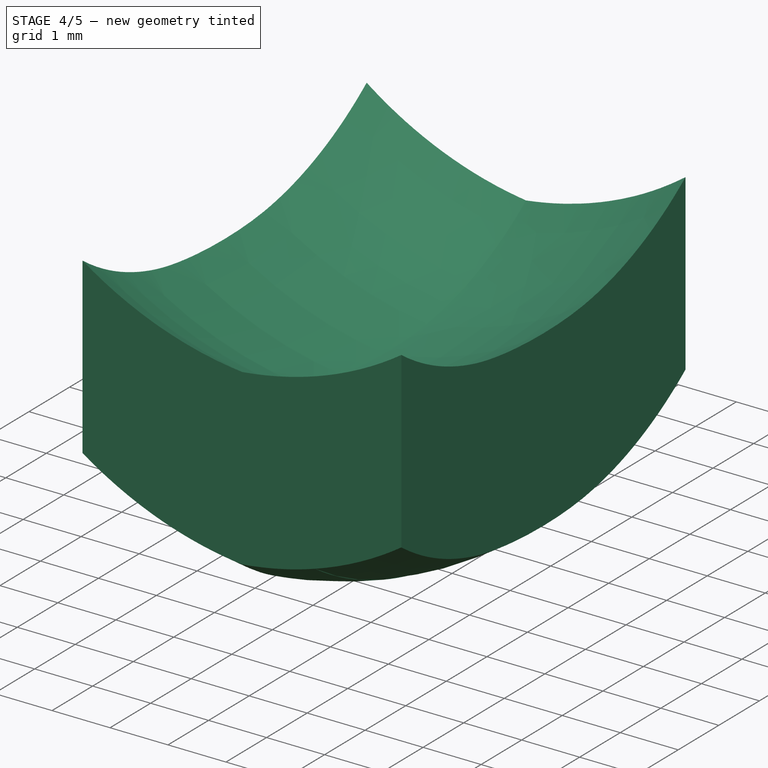
[diagram: stage 4 of 5 — iso view after this stage's code; geometry added in this stage tinted green]
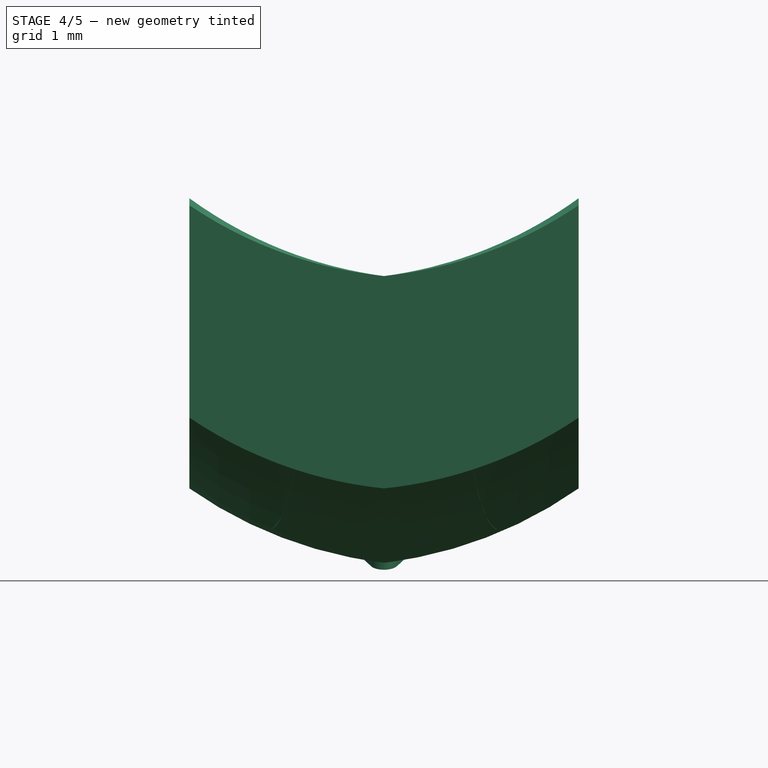
[diagram: stage 4 of 5 — front view after this stage's code; geometry added in this stage tinted green]
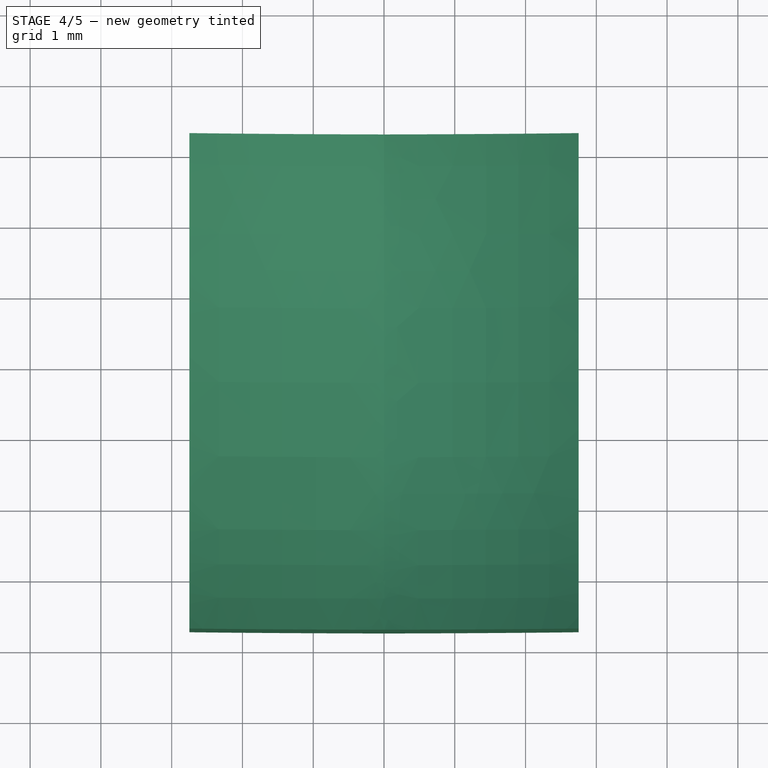
[diagram: stage 4 of 5 — top view after this stage's code; geometry added in this stage tinted green]
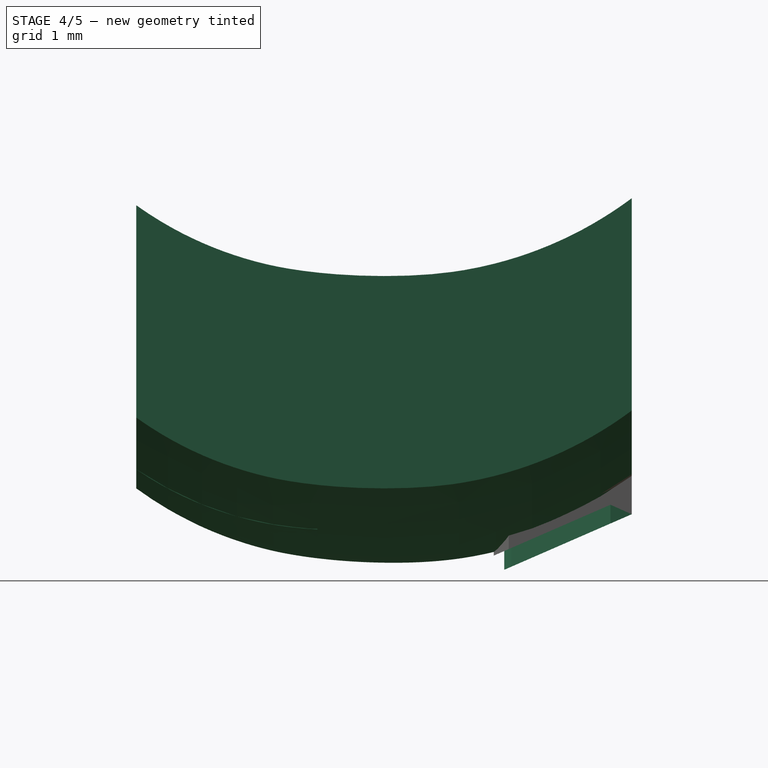
[diagram: stage 4 of 5 — right view after this stage's code; geometry added in this stage tinted green]
FEATURE [PartDesign::FeatureBase] BaseFeature003
  BaseFeature = -> Extrude
  Suppressed = false
FEATURE [PartDesign::FeatureBase] BaseFeature004
  BaseFeature = -> Extrude
  Suppressed = false
FEATURE [Sketcher::SketchObject] Sketch126
  ArcFitTolerance = 1e-06
  AttachmentOffset = pos=(0,0,-9) rot=(0,0,1;0rad)
  AttachmentSupport = -> [XY_Plane014]
  FullyConstrained = false
  MakeInternals = false
  MapMode = 5
  Placement = pos=(0,0,-9) rot=(0,0,1;0rad)
  sketch-geometry (4):
    g0: LineSegment StartX=7.16801 StartY=9.8091 StartZ=0 EndX=15.3948 EndY=9.8091 EndZ=0
    g1: LineSegment StartX=15.3948 StartY=9.8091 StartZ=0 EndX=15.3948 EndY=14.6931 EndZ=0
    g2: LineSegment StartX=15.3948 StartY=14.6931 StartZ=0 EndX=7.16801 EndY=14.6931 EndZ=0
    g3: LineSegment StartX=7.16801 StartY=14.6931 StartZ=0 EndX=7.16801 EndY=9.8091 EndZ=0
  constraints (8):
    c: Coincident(g0,g1)
    c: Coincident(g1,g2)
    c: Coincident(g2,g3)
    c: Coincident(g3,g0)
    c: Horizontal(g0)
    c: Horizontal(g2)
    c: Vertical(g1)
    c: Vertical(g3)
FEATURE [PartDesign::Pocket] Pocket006
  BaseFeature = -> BaseFeature004
  Direction = (0,0,-1)
  Length = 15
  Length2 = 5
  Profile = -> Sketch126
  ReferenceAxis = -> Sketch126 [N_Axis]
  Refine = true
  Reversed = true
  Suppressed = false
  Type = 0
FEATURE [Sketcher::SketchObject] Sketch127
  ArcFitTolerance = 1e-06
  AttachmentOffset = pos=(0,0,-9) rot=(0,0,1;0rad)
  AttachmentSupport = -> [XY_Plane014]
  FullyConstrained = false
  MakeInternals = false
  MapMode = 5
  Placement = pos=(0,0,-9) rot=(0,0,1;0rad)
  sketch-geometry (8):
    g0: LineSegment StartX=12.6162 StartY=10.0134 StartZ=0 EndX=12.2344 EndY=7.0775 EndZ=0
    g1: LineSegment StartX=12.2344 StartY=7.0775 StartZ=0 EndX=14.7401 EndY=7.0775 EndZ=0
    g2: LineSegment StartX=14.7401 StartY=7.0775 StartZ=0 EndX=14.7401 EndY=10.0134 EndZ=0
    g3: LineSegment StartX=12.6162 StartY=10.0134 StartZ=0 EndX=14.7401 EndY=10.0134 EndZ=0
    g4: LineSegment StartX=9.39833 StartY=9.88859 StartZ=0 EndX=7.51219 EndY=9.88859 EndZ=0
    g5: LineSegment StartX=7.51219 StartY=9.88859 StartZ=0 EndX=7.51219 EndY=7.05251 EndZ=0
    g6: LineSegment StartX=7.51219 StartY=7.05251 StartZ=0 EndX=9.7669 EndY=7.05251 EndZ=0
    g7: LineSegment StartX=9.7669 StartY=7.05251 StartZ=0 EndX=9.39833 EndY=9.88859 EndZ=0
  constraints (14):
    c: Coincident(g1,g0)
    c: Horizontal(g1)
    c: Coincident(g2,g1)
    c: Vertical(g2)
    c: Coincident(g3,g0)
    c: Coincident(g3,g2)
    c: Horizontal(g3)
    c: Horizontal(g4)
    c: Coincident(g5,g4)
    c: Vertical(g5)
    c: Coincident(g6,g5)
    c: Horizontal(g6)
    c: Coincident(g7,g6)
    c: Coincident(g7,g4)
FEATURE [PartDesign::Pocket] Pocket007
  BaseFeature = -> Pocket006
  Direction = (0,0,-1)
  Length = 10
  Length2 = 5
  Profile = -> Sketch127
  ReferenceAxis = -> Sketch127 [N_Axis]
  Refine = true
  Reversed = true
  Suppressed = false
  Type = 0
FEATURE [Sketcher::SketchObject] Sketch132
  ArcFitTolerance = 1e-06
  AttachmentOffset = pos=(0,0,-9) rot=(0,0,1;0rad)
  AttachmentSupport = -> [XY_Plane016]
  ExternalGeometry = -> [Pocket009]
  FullyConstrained = true
  MakeInternals = false
  MapMode = 5
  Placement = pos=(0,0,-9) rot=(0,0,1;0rad)
  sketch-geometry (14):
    g0: LineSegment StartX=11.85 StartY=14.25 StartZ=0 EndX=11.5 EndY=14.25 EndZ=0
    g1: LineSegment StartX=11.5 StartY=14.25 StartZ=0 EndX=11.1801 EndY=13.5874 EndZ=0
    g2: LineSegment StartX=10.8199 StartY=13.5874 StartZ=0 EndX=10.5 EndY=14.25 EndZ=0
    g3: LineSegment StartX=10.5 StartY=14.25 StartZ=0 EndX=10.15 EndY=14.25 EndZ=0
    g4: LineSegment StartX=10.15 StartY=14.25 StartZ=0 EndX=10.15 EndY=13.95 EndZ=0
    g5: LineSegment StartX=10.15 StartY=13.95 StartZ=0 EndX=10.8199 EndY=12.5625 EndZ=0
    g6: LineSegment StartX=11.85 StartY=14.25 StartZ=0 EndX=11.85 EndY=13.95 EndZ=0
    g7: LineSegment StartX=11.85 StartY=13.95 StartZ=0 EndX=11.1801 EndY=12.5625 EndZ=0
    g8: LineSegment [constr] StartX=11 StartY=12.3 StartZ=0 EndX=11 EndY=14.25 EndZ=0
    g9: ArcOfCircle CenterX=11 CenterY=12.6495 CenterZ=0 NormalX=0 NormalY=0 NormalZ=1 AngleXU=0 Radius=0.2 StartAngle=3.59139 EndAngle=5.83339
    g10: GeomPoint [constr] X=11 Y=12.1895 Z=0
    g11: ArcOfCircle CenterX=11 CenterY=13.6744 CenterZ=0 NormalX=0 NormalY=0 NormalZ=1 AngleXU=0 Radius=0.2 StartAngle=3.59139 EndAngle=5.83339
    g12: GeomPoint [constr] X=11 Y=13.2144 Z=0
    g13: LineSegment [constr] StartX=11.85 StartY=13.95 StartZ=0 EndX=10.15 EndY=13.95 EndZ=0
  constraints (34):
    c: Coincident(g0,g-4)
    c: PointOnObject(g0,g-3)
    c: Coincident(g1,g0)
    c: PointOnObject(g2,g-3)
    c: Coincident(g3,g2)
    c: Coincident(g3,g-5)
    c: Coincident(g4,g3)
    c: PointOnObject(g4,g-5)
    c: Coincident(g5,g4)
    c: Coincident(g6,g0)
    c: PointOnObject(g6,g-4)
    c: Coincident(g7,g6)
    c: Parallel(g1,g7)
    c: Parallel(g2,g5)
    c: Coincident(g8,g-6)
    c: Symmetric(g-3,g-3,g8)
    c: PointOnObject(g12,g8)
    c: PointOnObject(g10,g8)
    c: PointOnObject(g10,g5)
    c: PointOnObject(g10,g7)
    c: Tangent(g5,g9) = -1.5708
    c: Tangent(g7,g9) = 1.5708
    c: PointOnObject(g12,g1)
    c: PointOnObject(g12,g2)
    c: Tangent(g1,g11) = 1.5708
    c: Tangent(g2,g11) = 1.5708
    c: Coincident(g13,g6)
    c: Coincident(g13,g4)
    c: Horizontal(g13)
    c: DistanceY(g6,g6) = 0.3
    c: Radius(g11) = 0.2
    c: Radius(g9) = 0.2
    c: DistanceX(g8,g0) = 0.5
    c: DistanceY(g-6,g5) = 0.05
FEATURE [PartDesign::Pad] Pad104
  BaseFeature = -> Pocket009
  Direction = (0,0,1)
  Length = 2
  Length2 = 10
  Profile = -> Sketch132
  ReferenceAxis = -> Sketch132 [N_Axis]
  Refine = true
  Suppressed = false
  Type = 0
FEATURE [Sketcher::SketchObject] Sketch133
  ArcFitTolerance = 1e-06
  AttachmentSupport = -> [Pad104]
  ExternalGeometry = -> [Pad104]
  FullyConstrained = true
  MakeInternals = false
  MapMode = 5
  Placement = pos=(10.15,-6.3e-15,8.2e-15) rot=(0.57735,-0.57735,-0.57735;2.0944rad)
  sketch-geometry (4):
    g0: LineSegment StartX=-12.4495 StartY=-9 StartZ=0 EndX=-12.4495 EndY=-8.15 EndZ=0
    g1: LineSegment StartX=-12.4495 StartY=-8.15 StartZ=0 EndX=-14.25 EndY=-7.36515 EndZ=0
    g2: LineSegment StartX=-14.25 StartY=-7.36515 StartZ=0 EndX=-14.25 EndY=-9 EndZ=0
    g3: LineSegment StartX=-14.25 StartY=-9 StartZ=0 EndX=-12.4495 EndY=-9 EndZ=0
  constraints (10):
    c: Coincident(g0,g-5)
    c: Vertical(g0)
    c: Coincident(g1,g0)
    c: PointOnObject(g1,g-7)
    c: Coincident(g2,g1)
    c: Coincident(g2,g-7)
    c: Coincident(g3,g2)
    c: Coincident(g3,g0)
    c: Parallel(g-3,g1)
    c: DistanceY(g0,g0) = 0.85
FEATURE [PartDesign::Pocket] Pocket010
  BaseFeature = -> Pad104
  Direction = (1,0,0)
  Length = 5
  Length2 = 5
  Profile = -> Sketch133
  ReferenceAxis = -> Sketch133 [N_Axis]
  Refine = true
  Suppressed = false
  Type = 0
FEATURE [PartDesign::Body] Body015  label="Forehead"
  AllowCompound = false
  Group = -> [Binder,Sketch130,Pad103,Sketch131,Pocket009,Sketch132,Pad104,Sketch133,Pocket010]
  Origin = -> Origin016
  Tip = -> Pocket010
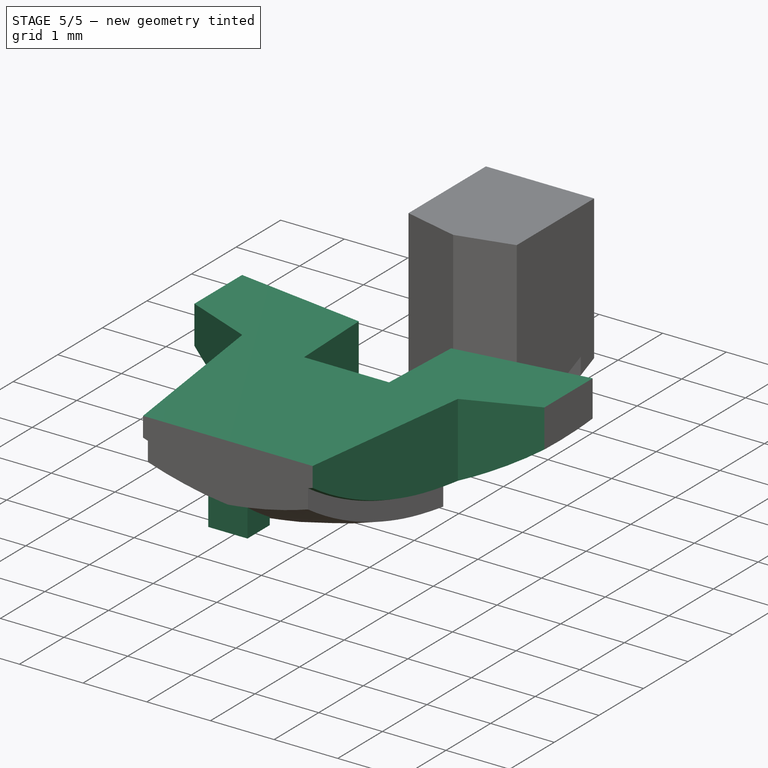
[diagram: stage 5 of 5 — iso view after this stage's code; geometry added in this stage tinted green]
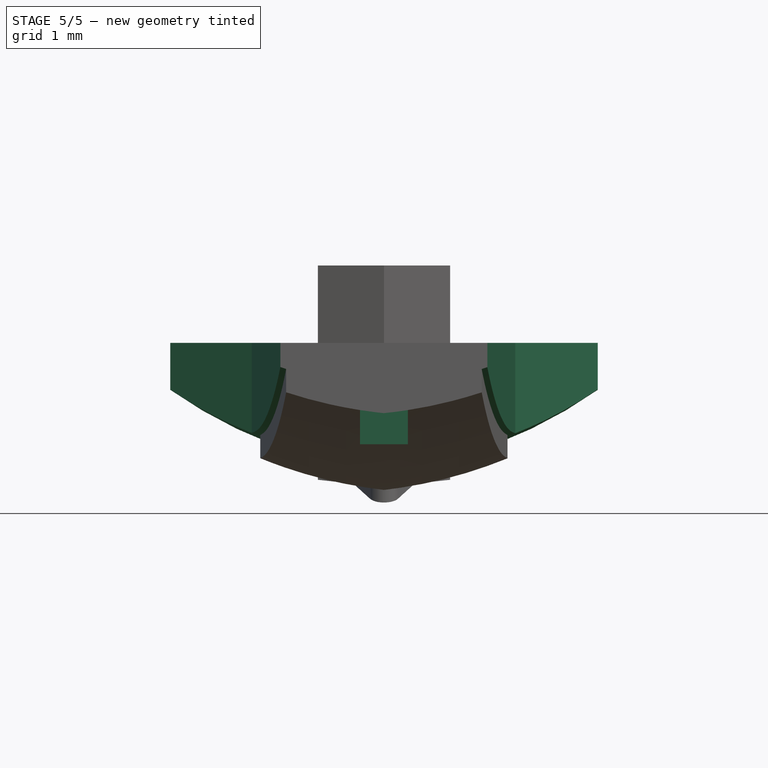
[diagram: stage 5 of 5 — front view after this stage's code; geometry added in this stage tinted green]
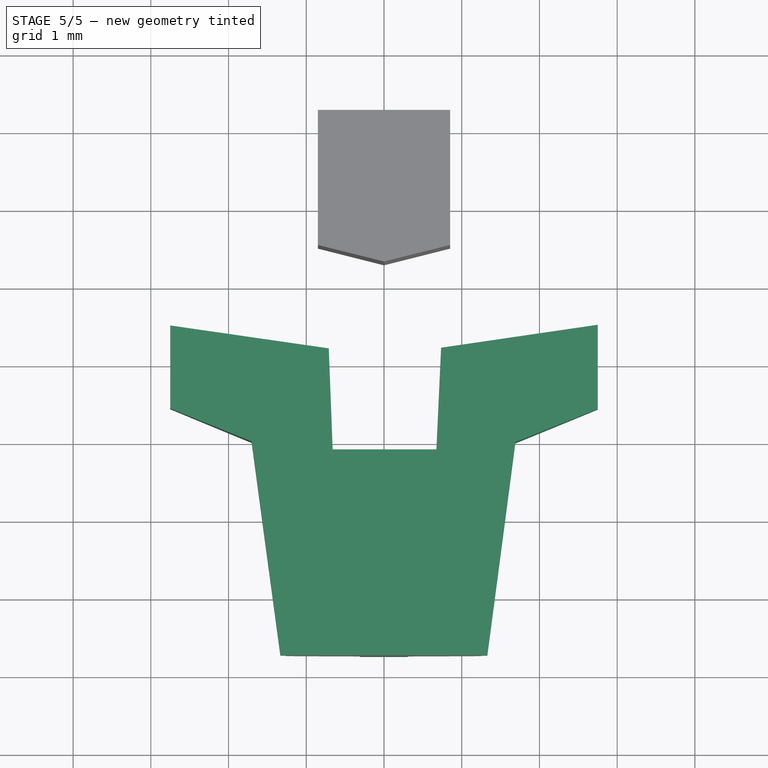
[diagram: stage 5 of 5 — top view after this stage's code; geometry added in this stage tinted green]
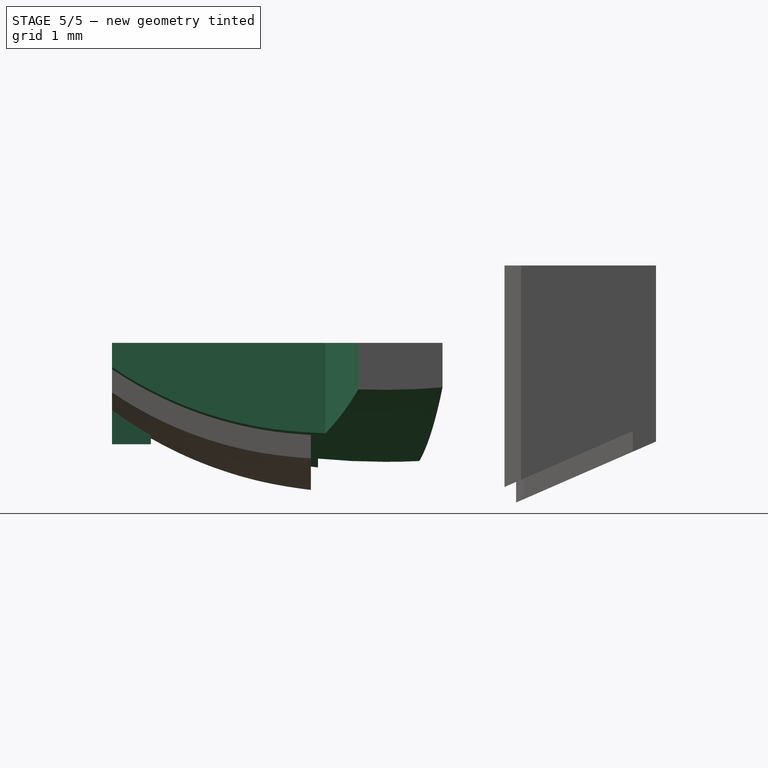
[diagram: stage 5 of 5 — right view after this stage's code; geometry added in this stage tinted green]
FEATURE [Sketcher::SketchObject] Sketch124
  ArcFitTolerance = 1e-06
  AttachmentSupport = -> [BaseFeature003]
  FullyConstrained = false
  MakeInternals = false
  MapMode = 5
  Placement = pos=(4.778e-13,7.25,0) rot=(1,0,0;1.5708rad)
  sketch-geometry (4):
    g0: LineSegment StartX=7.96586 StartY=-6.39665 StartZ=0 EndX=13.9659 EndY=-6.39665 EndZ=0
    g1: LineSegment StartX=13.9659 StartY=-6.39665 StartZ=0 EndX=13.9659 EndY=-1.39665 EndZ=0
    g2: LineSegment StartX=13.9659 StartY=-1.39665 StartZ=0 EndX=7.96586 EndY=-1.39665 EndZ=0
    g3: LineSegment StartX=7.96586 StartY=-1.39665 StartZ=0 EndX=7.96586 EndY=-6.39665 EndZ=0
  constraints (10):
    c: Coincident(g0,g1)
    c: Coincident(g1,g2)
    c: Coincident(g2,g3)
    c: Coincident(g3,g0)
    c: Horizontal(g0)
    c: Horizontal(g2)
    c: Vertical(g1)
    c: Vertical(g3)
    c: DistanceY(g1,g1) = 5
    c: DistanceX(g0,g0) = 6
FEATURE [PartDesign::Pocket] Pocket004
  BaseFeature = -> BaseFeature003
  Direction = (6.59e-14,1,-2e-16)
  Length = 13
  Length2 = 5
  Profile = -> Sketch124
  ReferenceAxis = -> Sketch124 [N_Axis]
  Refine = true
  Suppressed = false
  Type = 0
FEATURE [Sketcher::SketchObject] Sketch125
  ArcFitTolerance = 1e-06
  AttachmentOffset = pos=(0,0,4.1) rot=(0,0,1;0rad)
  AttachmentSupport = -> [Pad101]
  FullyConstrained = false
  MakeInternals = false
  MapMode = 5
  Placement = pos=(0,0,-8.1) rot=(1,0,0;3.14159rad)
  sketch-geometry (16):
    g0: LineSegment StartX=12.3192 StartY=-7.173 StartZ=0 EndX=12.6886 EndY=-9.9945 EndZ=0
    g1: LineSegment StartX=12.6886 StartY=-9.9945 StartZ=0 EndX=13.7789 EndY=-10.432 EndZ=0
    g2: LineSegment StartX=13.7789 StartY=-10.432 StartZ=0 EndX=13.7789 EndY=-7.173 EndZ=0
    g3: LineSegment StartX=12.3192 StartY=-7.173 StartZ=0 EndX=13.7789 EndY=-7.173 EndZ=0
    g4: LineSegment StartX=8.11669 StartY=-10.4789 StartZ=0 EndX=9.29823 EndY=-10.0014 EndZ=0
    g5: LineSegment StartX=9.29823 StartY=-10.0014 StartZ=0 EndX=9.67677 EndY=-7.17296 EndZ=0
    g6: LineSegment StartX=9.67677 StartY=-7.17296 StartZ=0 EndX=8.11669 EndY=-7.17296 EndZ=0
    g7: LineSegment StartX=8.11669 StartY=-7.17296 StartZ=0 EndX=8.11669 EndY=-10.4789 EndZ=0
    g8: LineSegment StartX=14.3335 StartY=-14.8672 StartZ=0 EndX=7.67197 EndY=-14.8672 EndZ=0
    g9: LineSegment StartX=14.3335 StartY=-14.8672 StartZ=0 EndX=14.3335 EndY=-11.5888 EndZ=0
    g10: LineSegment StartX=7.67197 StartY=-14.8672 StartZ=0 EndX=7.67197 EndY=-11.5774 EndZ=0
    g11: LineSegment StartX=14.3335 StartY=-11.5888 StartZ=0 EndX=11.7345 EndY=-11.208 EndZ=0
    g12: LineSegment StartX=11.7345 StartY=-11.208 StartZ=0 EndX=11.6742 EndY=-9.90037 EndZ=0
    g13: LineSegment StartX=11.6742 StartY=-9.90037 StartZ=0 EndX=10.3393 EndY=-9.90037 EndZ=0
    g14: LineSegment StartX=10.3393 StartY=-9.90037 StartZ=0 EndX=10.2895 EndY=-11.1995 EndZ=0
    g15: LineSegment StartX=10.2895 StartY=-11.1995 StartZ=0 EndX=7.67197 EndY=-11.5774 EndZ=0
  constraints (24):
    c: Coincident(g1,g0)
    c: Coincident(g2,g1)
    c: Vertical(g2)
    c: Coincident(g3,g0)
    c: Coincident(g3,g2)
    c: Horizontal(g3)
    c: Coincident(g5,g4)
    c: Coincident(g6,g5)
    c: Horizontal(g6)
    c: Coincident(g7,g6)
    c: Coincident(g7,g4)
    c: Vertical(g7)
    c: Horizontal(g8)
    c: Coincident(g9,g8)
    c: Vertical(g9)
    c: Coincident(g10,g8)
    c: Vertical(g10)
    c: Coincident(g11,g9)
    c: Coincident(g12,g11)
    c: Coincident(g13,g12)
    c: Horizontal(g13)
    c: Coincident(g14,g13)
    c: Coincident(g15,g14)
    c: Coincident(g15,g10)
FEATURE [PartDesign::Pocket] Pocket005
  BaseFeature = -> Pocket004
  Direction = (0,0,1)
  Length = 5
  Length2 = 5
  Profile = -> Sketch125
  ReferenceAxis = -> Sketch125 [N_Axis]
  Refine = true
  Suppressed = false
  Type = 0
FEATURE [PartDesign::Body] Body012
  AllowCompound = false
  BaseFeature = -> Extrude
  Group = -> [BaseFeature003,Sketch124,Pocket004,Sketch125,Pocket005]
  Origin = -> Origin013
  Placement = pos=(0,0,0.3) rot=(0,0,1;0rad)
  Tip = -> Pocket005
FEATURE [Part::MultiFuse] Fusion001
  Shapes = -> [Body012,Body013]
FEATURE [PartDesign::FeatureBase] BaseFeature005
  BaseFeature = -> Fusion001
  Suppressed = false
FEATURE [Sketcher::SketchObject] Sketch128
  ArcFitTolerance = 1e-06
  AttachmentSupport = -> [BaseFeature005]
  ExternalGeometry = -> [BaseFeature005]
  FullyConstrained = false
  MakeInternals = false
  MapMode = 5
  Placement = pos=(4.778e-13,7.25,0) rot=(1,0,0;1.5708rad)
  sketch-geometry (4):
    g0: LineSegment StartX=13.7699 StartY=-6.09665 StartZ=0 EndX=13.7699 EndY=-3.5458 EndZ=0
    g1: LineSegment StartX=13.7699 StartY=-3.5458 StartZ=0 EndX=7.8004 EndY=-3.5458 EndZ=0
    g2: LineSegment StartX=7.8004 StartY=-3.5458 StartZ=0 EndX=7.8004 EndY=-6.09665 EndZ=0
    g3: LineSegment StartX=7.8004 StartY=-6.09665 StartZ=0 EndX=13.7699 EndY=-6.09665 EndZ=0
  constraints (9):
    c: Coincident(g0,g1)
    c: Coincident(g1,g2)
    c: Coincident(g2,g3)
    c: Coincident(g3,g0)
    c: Vertical(g0)
    c: Vertical(g2)
    c: Horizontal(g1)
    c: Horizontal(g3)
    c: PointOnObject(g-3,g3)
FEATURE [PartDesign::Pocket] Pocket008
  BaseFeature = -> BaseFeature005
  Direction = (6.59e-14,1,-2e-16)
  Length = 5
  Length2 = 5
  Profile = -> Sketch128
  ReferenceAxis = -> Sketch128 [N_Axis]
  Refine = true
  Suppressed = false
  Type = 0
FEATURE [Sketcher::SketchObject] Sketch129
  ArcFitTolerance = 1e-06
  AttachmentOffset = pos=(0,0,-7.4) rot=(0,0,1;0rad)
  AttachmentSupport = -> [XY_Plane015]
  ExternalGeometry = -> [Pocket008]
  FullyConstrained = true
  MakeInternals = false
  MapMode = 5
  Placement = pos=(0,0,-7.4) rot=(0,0,1;0rad)
  sketch-geometry (5):
    g0: LineSegment StartX=10.6912 StartY=7.25 StartZ=0 EndX=11.3068 EndY=7.25 EndZ=0
    g1: LineSegment StartX=11.3068 StartY=7.25 StartZ=0 EndX=11.3068 EndY=7.75 EndZ=0
    g2: LineSegment StartX=11.3068 StartY=7.75 StartZ=0 EndX=10.6912 EndY=7.75 EndZ=0
    g3: LineSegment StartX=10.6912 StartY=7.75 StartZ=0 EndX=10.6912 EndY=7.25 EndZ=0
    g4: LineSegment [constr] StartX=12.2568 StartY=7.25 StartZ=0 EndX=9.74124 EndY=7.25 EndZ=0
  constraints (14):
    c: Coincident(g0,g1)
    c: Coincident(g1,g2)
    c: Coincident(g2,g3)
    c: Coincident(g3,g0)
    c: Horizontal(g0)
    c: Horizontal(g2)
    c: Vertical(g1)
    c: Vertical(g3)
    c: DistanceY(g3,g3) = 0.5
    c: Coincident(g4,g-4)
    c: Coincident(g4,g-3)
    c: PointOnObject(g0,g4)
    c: DistanceX(g0,g4) = 0.95
    c: DistanceX(g4,g0) = 0.95
FEATURE [PartDesign::Pad] Pad102
  BaseFeature = -> Pocket008
  Direction = (0,0,1)
  Length = 1
  Length2 = 10
  Profile = -> Sketch129
  ReferenceAxis = -> Sketch129 [N_Axis]
  Refine = true
  Suppressed = false
  Type = 0
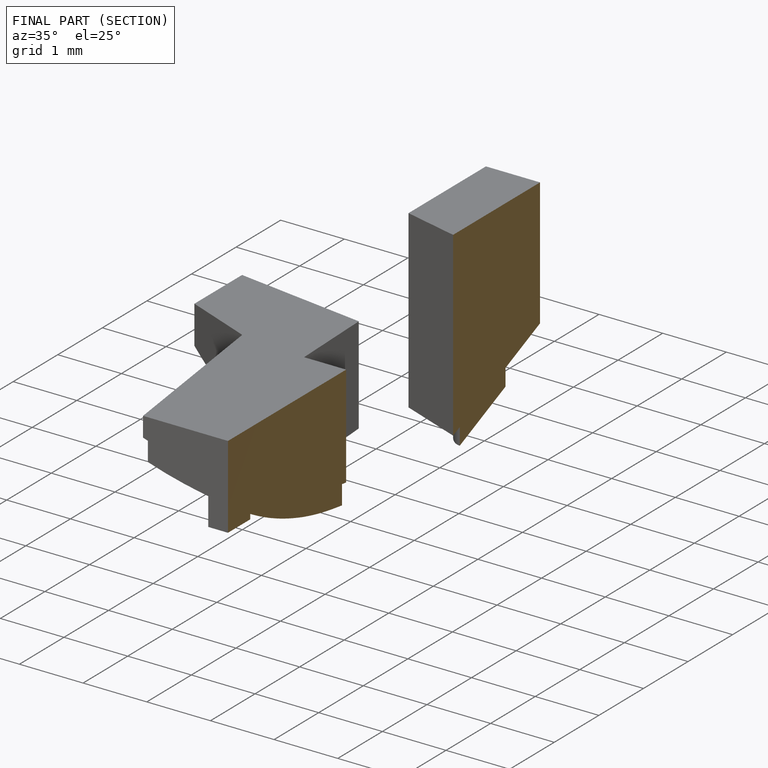
[diagram: finished part — half-section view (interior)]
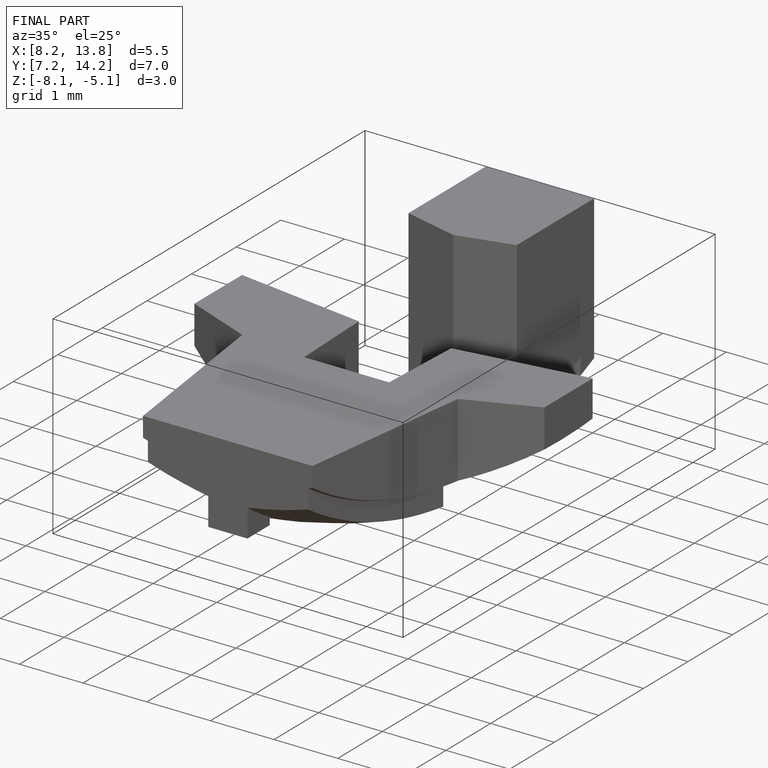
[diagram: finished part — iso view with bounding-box wireframe]
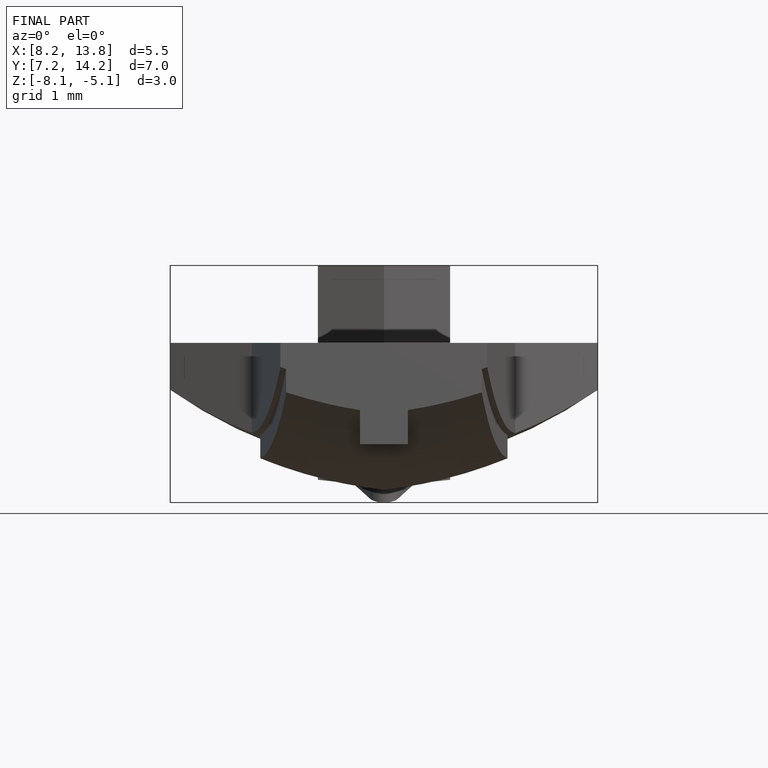
[diagram: finished part — front view with bounding-box wireframe]
